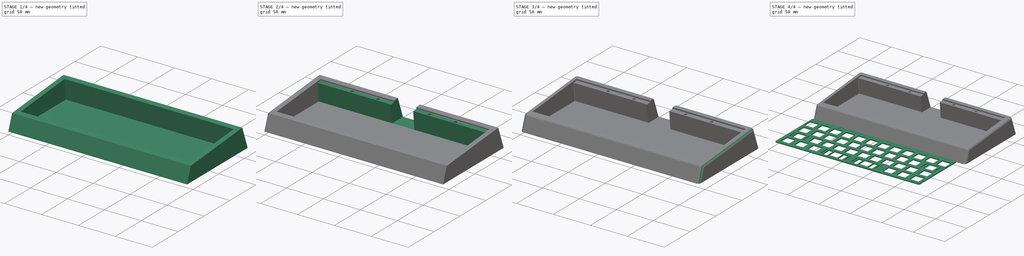
[diagram: build sequence overview — one tinted view per stage of 4, left to right]
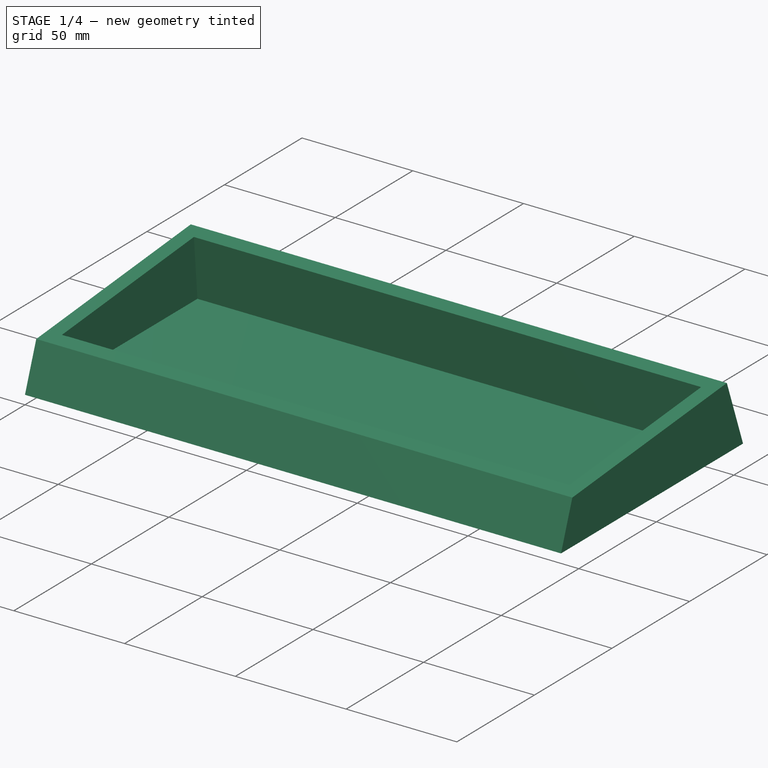
[diagram: stage 1 of 4 — iso view after this stage's code; geometry added in this stage tinted green]
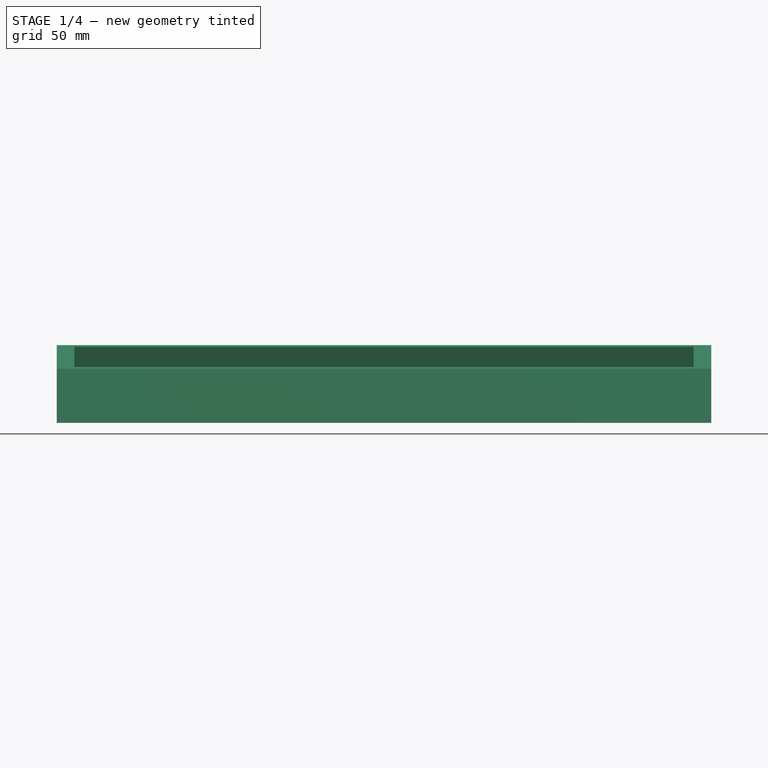
[diagram: stage 1 of 4 — front view after this stage's code; geometry added in this stage tinted green]
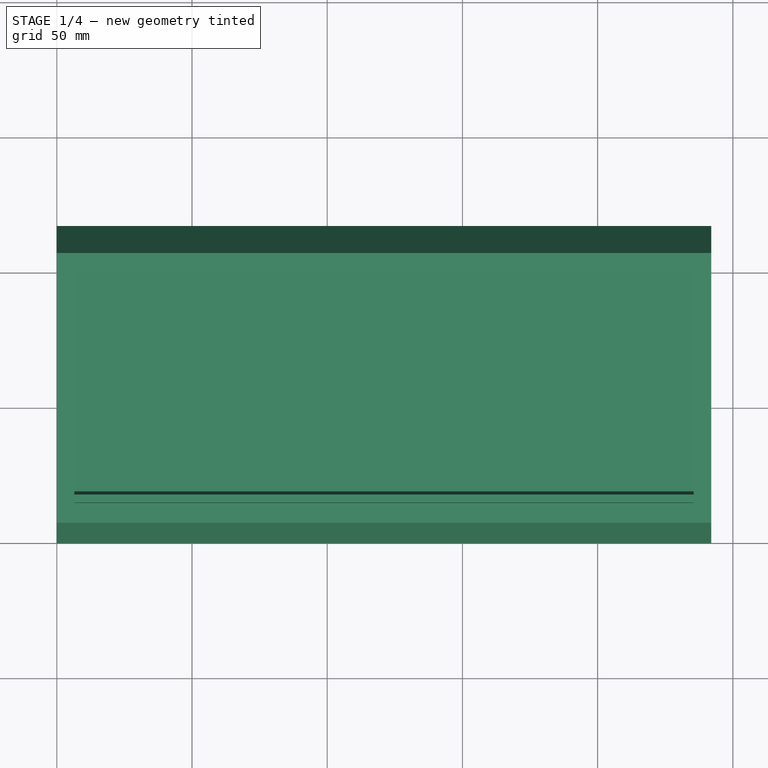
[diagram: stage 1 of 4 — top view after this stage's code; geometry added in this stage tinted green]
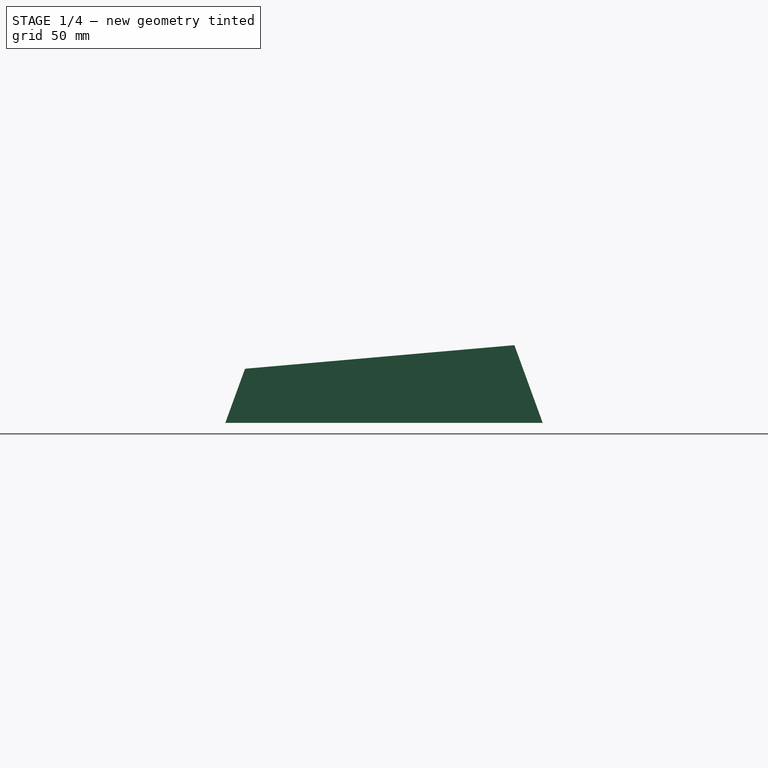
[diagram: stage 1 of 4 — right view after this stage's code; geometry added in this stage tinted green]
FCSTD DOCUMENT  (FreeCAD 0.20R)
Label: daisy
License: All rights reserved
LicenseURL: http://en.wikipedia.org/wiki/All_rights_reserved
objects: Sketcher::SketchObject×8, PartDesign::Pad×4, PartDesign::Fillet×4, PartDesign::Pocket×2, PartDesign::Hole×2, PartDesign::Body×2
note: 34 computed .brp shape members not serialized (recipe doc carries the construction recipe); baked Part::Feature solids carry a one-line shape summary decoded from their .brp

FEATURE [Sketcher::SketchObject] Sketch
  FullyConstrained = true
  MapMode = 5
  Placement = pos=(0,0,0) rot=(0.57735,0.57735,0.57735;2.0944rad)
  Support = -> [YZ_Plane]
  sketch-geometry (4):
    g0: LineSegment StartX=0 StartY=0 StartZ=0 EndX=7.2794 EndY=20 EndZ=0
    g1: LineSegment StartX=7.2794 StartY=20 StartZ=0 EndX=106.899 EndY=28.7156 EndZ=0
    g2: LineSegment StartX=106.899 StartY=28.7156 StartZ=0 EndX=117.35 EndY=0 EndZ=0
    g3: LineSegment StartX=117.35 StartY=0 StartZ=0 EndX=0 EndY=0 EndZ=0
  constraints (11):
    c: Coincident(g-1,g0)
    c: Coincident(g0,g1)
    c: Coincident(g1,g2)
    c: PointOnObject(g2,g-1)
    c: Coincident(g2,g3)
    c: Coincident(g3,g0)
    c: DistanceY(g0,g0) = 20
    c: Angle(g3,g1) = 0.0872665
    c: Distance(g1) = 100
    c: Angle(g3,g0) = 1.22173
    c: Angle(g2,g3) = 1.22173
FEATURE [PartDesign::Pad] Pad
  Direction = (1,-2e-16,3e-16)
  Length = 242
  Length2 = 10
  Placement = pos=(0,0,0) rot=(0.57735,0.57735,0.57735;2.0944rad)
  Profile = -> Sketch
  ReferenceAxis = -> Sketch [N_Axis]
  Type = 0
FEATURE [Sketcher::SketchObject] Sketch001
  ExternalGeometry = -> [Pad]
  FullyConstrained = true
  MapMode = 5
  Placement = pos=(-6.2e-15,-1.68119,19.216) rot=(0.043578,0.043578,-0.998099;1.5727rad)
  Support = -> [Pad]
  sketch-geometry (7):
    g0: LineSegment StartX=-101.695 StartY=6.5 StartZ=0 EndX=-16.2948 EndY=6.5 EndZ=0
    g1: LineSegment StartX=-16.2948 StartY=6.5 StartZ=0 EndX=-16.2948 EndY=235.5 EndZ=0
    g2: LineSegment StartX=-16.2948 StartY=235.5 StartZ=0 EndX=-101.695 EndY=235.5 EndZ=0
    g3: LineSegment StartX=-101.695 StartY=235.5 StartZ=0 EndX=-101.695 EndY=6.5 EndZ=0
    g4: LineSegment StartX=-8.99482 StartY=242 StartZ=0 EndX=-16.2948 EndY=235.5 EndZ=0
    g5: LineSegment StartX=-108.995 StartY=-1.02e-14 StartZ=0 EndX=-101.695 EndY=6.5 EndZ=0
    g6: LineSegment StartX=-8.99482 StartY=-3.4e-15 StartZ=0 EndX=-16.2948 EndY=6.5 EndZ=0
  constraints (18):
    c: Coincident(g0,g1)
    c: Coincident(g1,g2)
    c: Coincident(g2,g3)
    c: Coincident(g3,g0)
    c: Horizontal(g0)
    c: Horizontal(g2)
    c: Vertical(g1)
    c: Vertical(g3)
    c: Distance(g3) = 229
    c: Distance(g0) = 85.4
    c: Coincident(g4,g-3)
    c: Coincident(g4,g1)
    c: Coincident(g5,g-4)
    c: Coincident(g5,g0)
    c: Coincident(g6,g-3)
    c: Coincident(g6,g0)
    c: Equal(g6,g5)
    c: Equal(g6,g4)
FEATURE [PartDesign::Pocket] Pocket
  BaseFeature = -> Pad
  Direction = (4e-16,0.0871557,-0.996195)
  Length = 0
  Length2 = 5
  Offset = -2
  Placement = pos=(0,0,0) rot=(0.57735,0.57735,0.57735;2.0944rad)
  Profile = -> Sketch001
  ReferenceAxis = -> Sketch001 [N_Axis]
  Type = 3
  UpToFace = -> Pad [Face4]
FEATURE [Sketcher::SketchObject] Sketch002
  ExternalGeometry = -> [Pocket]
  FullyConstrained = true
  MapMode = 5
  Placement = pos=(7.2e-15,16.2328,1.42019) rot=(-0.559809,-0.559809,-0.610924;2.04477rad)
  Support = -> [Pocket]
  sketch-geometry (4):
    g0: LineSegment StartX=17.2895 StartY=6.5 StartZ=0 EndX=-0.425612 EndY=6.5 EndZ=0
    g1: LineSegment StartX=-0.425612 StartY=6.5 StartZ=0 EndX=-0.425612 EndY=235.5 EndZ=0
    g2: LineSegment StartX=-0.425612 StartY=235.5 StartZ=0 EndX=17.2895 EndY=235.5 EndZ=0
    g3: LineSegment StartX=17.2895 StartY=235.5 StartZ=0 EndX=17.2895 EndY=6.5 EndZ=0
  constraints (12):
    c: Coincident(g0,g1)
    c: Coincident(g1,g2)
    c: Coincident(g2,g3)
    c: Coincident(g3,g0)
    c: Horizontal(g0)
    c: Horizontal(g2)
    c: Vertical(g1)
    c: Vertical(g3)
    c: PointOnObject(g0,g-3)
    c: PointOnObject(g2,g-4)
    c: Distance(g2,g-4) = 2
    c: Distance(g1,g-4) = 1
FEATURE [PartDesign::Pad] Pad001
  BaseFeature = -> Pocket
  Direction = (4e-16,0.996195,0.0871557)
  Length = 3
  Length2 = 10
  Placement = pos=(0,0,0) rot=(0.57735,0.57735,0.57735;2.0944rad)
  Profile = -> Sketch002
  ReferenceAxis = -> Sketch002 [N_Axis]
  Type = 0
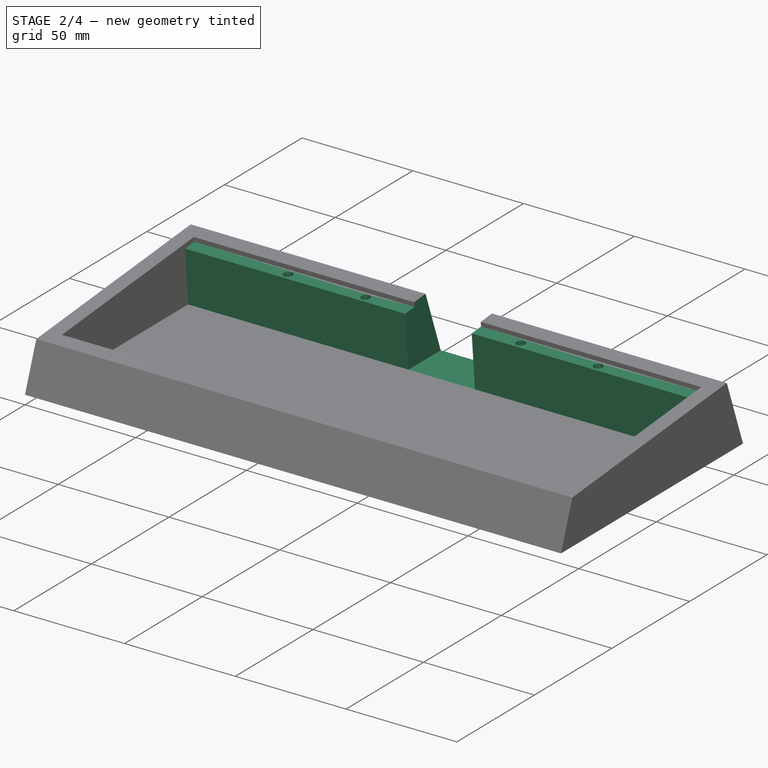
[diagram: stage 2 of 4 — iso view after this stage's code; geometry added in this stage tinted green]
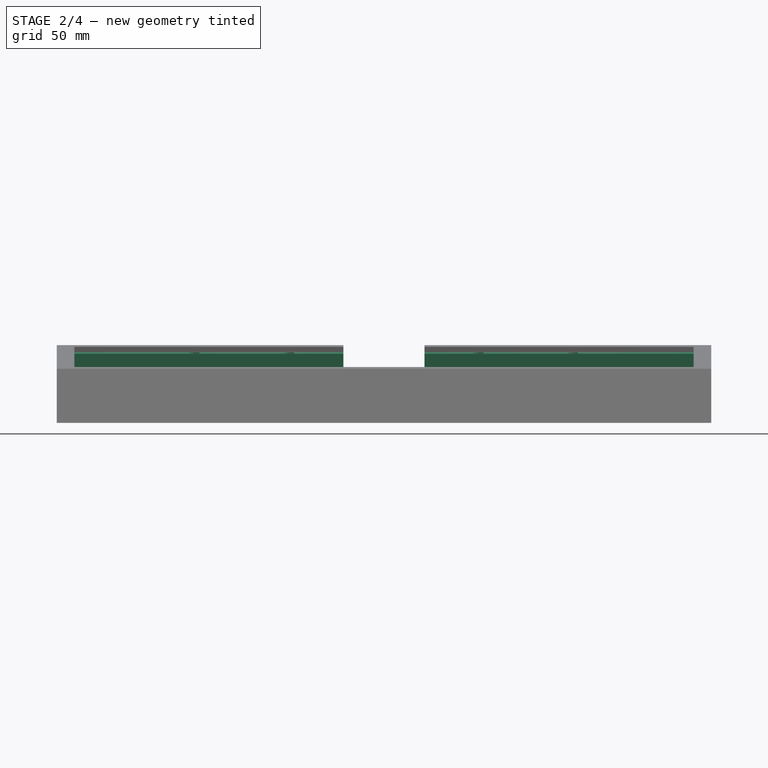
[diagram: stage 2 of 4 — front view after this stage's code; geometry added in this stage tinted green]
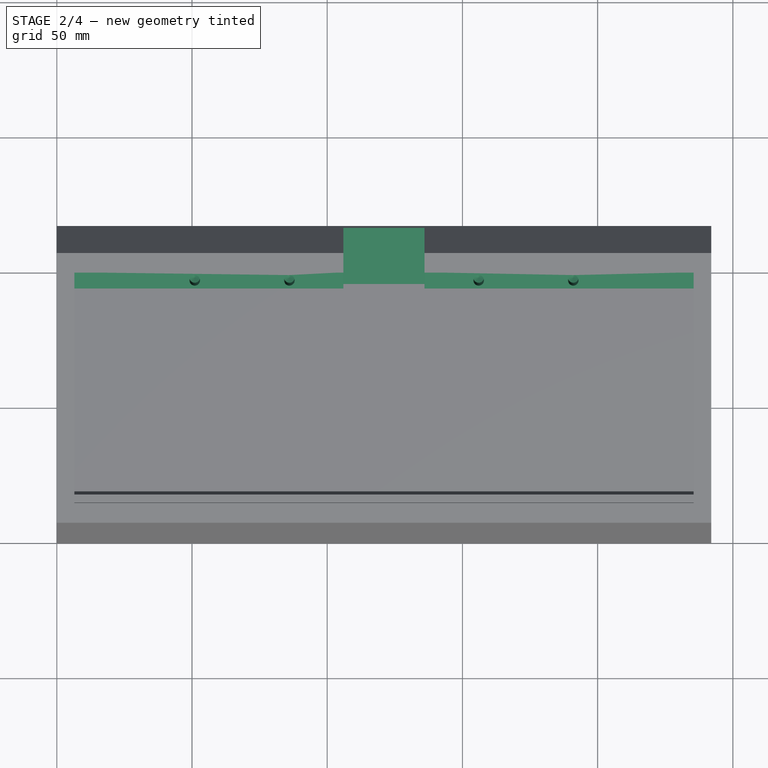
[diagram: stage 2 of 4 — top view after this stage's code; geometry added in this stage tinted green]
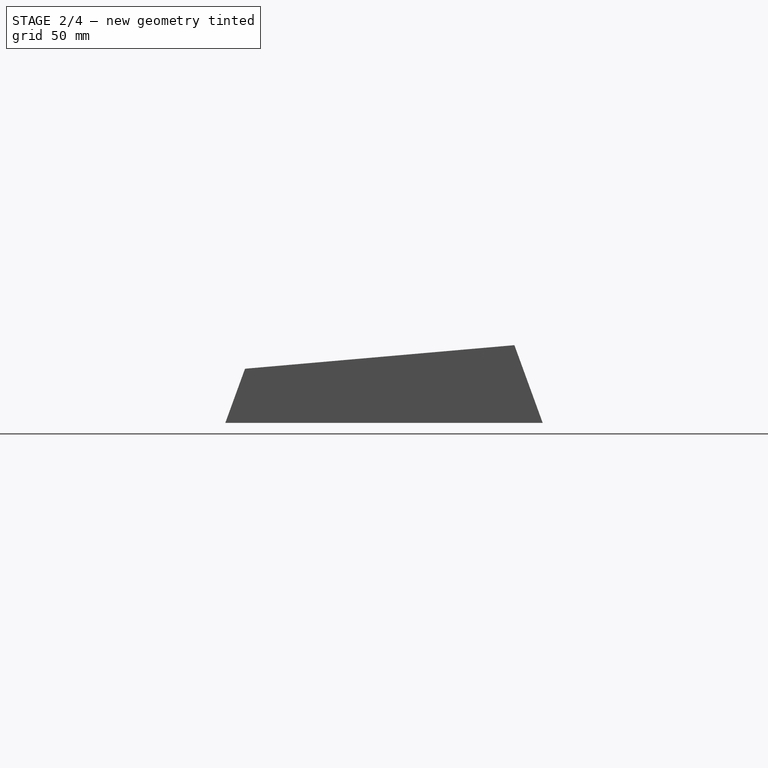
[diagram: stage 2 of 4 — right view after this stage's code; geometry added in this stage tinted green]
FEATURE [Sketcher::SketchObject] Sketch003
  ExternalGeometry = -> [Pad001]
  FullyConstrained = true
  MapMode = 5
  Placement = pos=(5.6e-14,101.308,8.86329) rot=(0.593426,0.593426,-0.543775;2.14549rad)
  Support = -> [Pad001]
  sketch-geometry (4):
    g0: LineSegment StartX=6.89714 StartY=6.5 StartZ=0 EndX=-17.2895 EndY=6.5 EndZ=0
    g1: LineSegment StartX=-17.2895 StartY=6.5 StartZ=0 EndX=-17.2895 EndY=235.5 EndZ=0
    g2: LineSegment StartX=-17.2895 StartY=235.5 StartZ=0 EndX=6.89714 EndY=235.5 EndZ=0
    g3: LineSegment StartX=6.89714 StartY=235.5 StartZ=0 EndX=6.89714 EndY=6.5 EndZ=0
  constraints (11):
    c: Coincident(g0,g1)
    c: Coincident(g1,g2)
    c: Coincident(g2,g3)
    c: Coincident(g3,g0)
    c: Horizontal(g0)
    c: Horizontal(g2)
    c: Vertical(g1)
    c: Vertical(g3)
    c: Coincident(g0,g-3)
    c: PointOnObject(g1,g-4)
    c: Distance(g1,g-4) = 2
FEATURE [PartDesign::Pad] Pad002
  BaseFeature = -> Pad001
  Direction = (-4e-16,-0.996195,-0.0871557)
  Length = 6
  Length2 = 10
  Placement = pos=(0,0,0) rot=(0.57735,0.57735,0.57735;2.0944rad)
  Profile = -> Sketch003
  ReferenceAxis = -> Sketch003 [N_Axis]
  Type = 0
FEATURE [Sketcher::SketchObject] Sketch004
  ExternalGeometry = -> [Pad002]
  FullyConstrained = true
  MapMode = 5
  Placement = pos=(-6.5e-15,-1.68119,19.216) rot=(0.043578,0.043578,-0.998099;1.5727rad)
  Support = -> [Pad002]
  sketch-geometry (5):
    g0: LineSegment StartX=-116.904 StartY=106 StartZ=0 EndX=-95.6948 EndY=106 EndZ=0
    g1: LineSegment StartX=-95.6948 StartY=106 StartZ=0 EndX=-95.6948 EndY=136 EndZ=0
    g2: LineSegment StartX=-95.6948 StartY=136 StartZ=0 EndX=-116.904 EndY=136 EndZ=0
    g3: LineSegment StartX=-116.904 StartY=136 StartZ=0 EndX=-116.904 EndY=106 EndZ=0
    g4: GeomPoint X=-116.904 Y=121 Z=0
  constraints (12):
    c: Coincident(g0,g1)
    c: Coincident(g1,g2)
    c: Coincident(g2,g3)
    c: Coincident(g3,g0)
    c: Horizontal(g0)
    c: Horizontal(g2)
    c: Vertical(g1)
    c: Vertical(g3)
    c: PointOnObject(g1,g-4)
    c: Symmetric(g-3,g-3,g4)
    c: Symmetric(g0,g2,g4)
    c: Distance(g3) = 30
FEATURE [PartDesign::Pocket] Pocket001
  BaseFeature = -> Pad002
  Direction = (3e-16,0.0871557,-0.996195)
  Length = 0
  Length2 = 5
  Placement = pos=(0,0,0) rot=(0.57735,0.57735,0.57735;2.0944rad)
  Profile = -> Sketch004
  ReferenceAxis = -> Sketch004 [N_Axis]
  Type = 3
  UpToFace = -> Pad002 [Face13]
FEATURE [Sketcher::SketchObject] Sketch007
  ExternalGeometry = -> [Pocket001]
  FullyConstrained = true
  MapMode = 5
  Placement = pos=(-2.1e-15,-1.50688,17.2237) rot=(0.043578,0.043578,-0.998099;1.5727rad)
  Support = -> [Pocket001]
  sketch-geometry (6):
    g0: GeomPoint X=-101.695 Y=121 Z=0
    g1: GeomPoint X=-98.6948 Y=121 Z=0
    g2: Circle CenterX=-98.6948 CenterY=156 CenterZ=0 NormalX=0 NormalY=0 NormalZ=1 AngleXU=0 Radius=1
    g3: Circle CenterX=-98.6948 CenterY=86 CenterZ=0 NormalX=0 NormalY=0 NormalZ=1 AngleXU=0 Radius=1
    g4: Circle CenterX=-98.6948 CenterY=191 CenterZ=0 NormalX=0 NormalY=0 NormalZ=1 AngleXU=0 Radius=1
    g5: Circle CenterX=-98.6948 CenterY=51 CenterZ=0 NormalX=0 NormalY=0 NormalZ=1 AngleXU=0 Radius=1
  constraints (13):
    c: Symmetric(g-3,g-4,g0)
    c: Horizontal(g1,g0)
    c: Distance(g1,g0) = 3
    c: Equal(g3,g2)
    c: Symmetric(g2,g3,g1)
    c: Vertical(g2,g3)
    c: Equal(g5,g4)
    c: Vertical(g4,g5)
    c: Symmetric(g4,g5,g1)
    c: Equal(g5,g3)
    c: DistanceY(g3,g1) = 35
    c: DistanceY(g5,g3) = 35
    c: Diameter(g5) = 2
FEATURE [PartDesign::Hole] Hole001
  BaseFeature = -> Pocket001
  CustomThreadClearance = 0
  Depth = 15
  DepthType = 0
  Diameter = 3.9
  DrillForDepth = false
  DrillPoint = 1
  DrillPointAngle = 118
  HoleCutCountersinkAngle = 90
  HoleCutCustomValues = false
  HoleCutDepth = 0
  HoleCutDiameter = 4
  HoleCutType = 0
  ModelThread = false
  Placement = pos=(0,0,0) rot=(0.57735,0.57735,0.57735;2.0944rad)
  Profile = -> Sketch007
  Tapered = false
  TaperedAngle = 90
  ThreadClass = 0
  ThreadDepth = 15
  ThreadDepthType = 0
  ThreadDirection = 0
  ThreadFit = 0
  ThreadSize = 10
  ThreadType = 1
  Threaded = false
  UseCustomThreadClearance = false
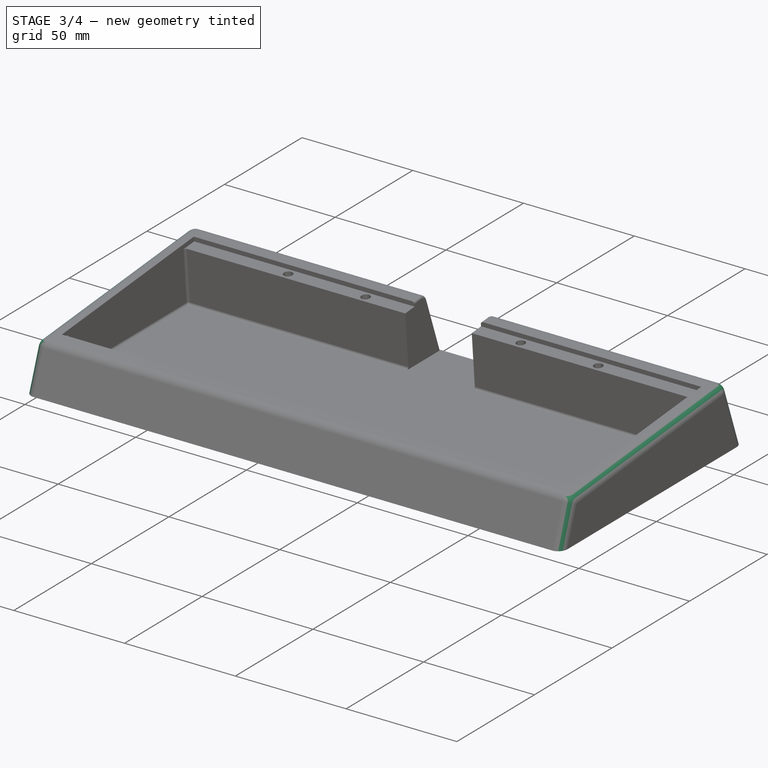
[diagram: stage 3 of 4 — iso view after this stage's code; geometry added in this stage tinted green]
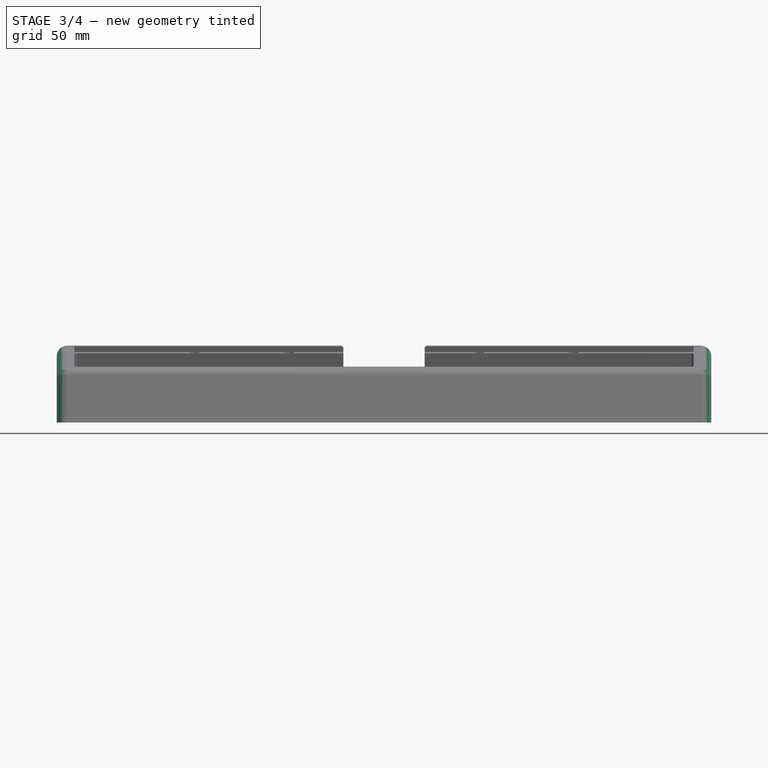
[diagram: stage 3 of 4 — front view after this stage's code; geometry added in this stage tinted green]
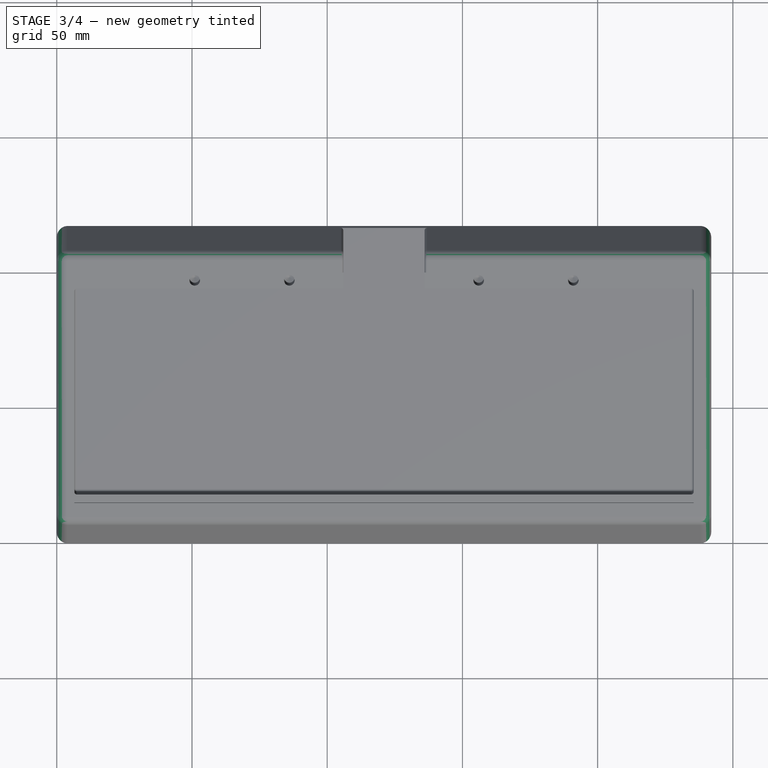
[diagram: stage 3 of 4 — top view after this stage's code; geometry added in this stage tinted green]
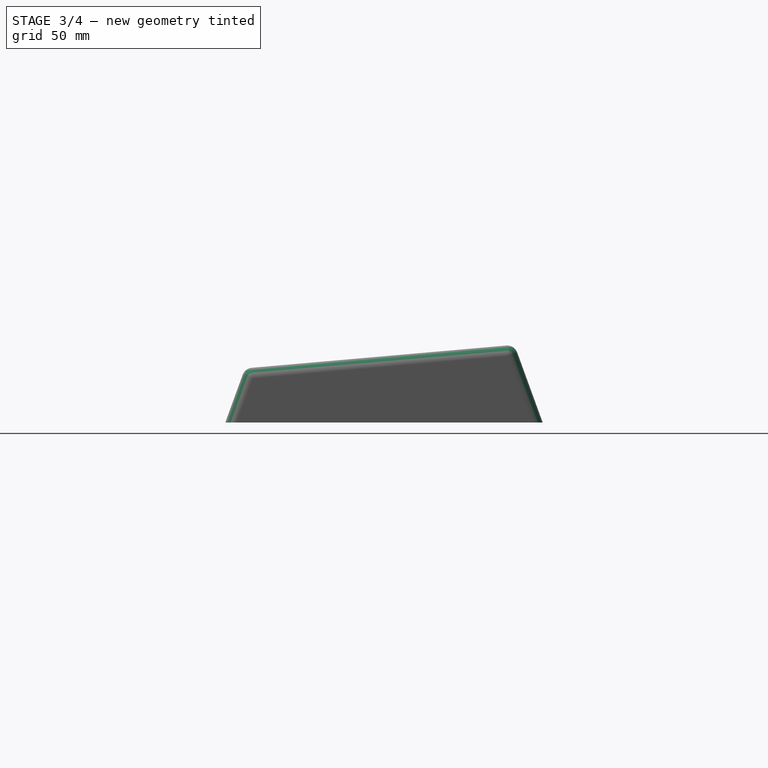
[diagram: stage 3 of 4 — right view after this stage's code; geometry added in this stage tinted green]
FEATURE [PartDesign::Body] Body001  label="plate"
  Group = -> [Sketch005,Pad003,Sketch006,Hole,Fillet004]
  Origin = -> Origin001
  Placement = pos=(6.7,99.804,26.0893) rot=(1,0,0;0.087266rad)
  Tip = -> Fillet004
FEATURE [PartDesign::Fillet] Fillet
  Base = -> Hole001 [Face19,Edge34,Edge32,Edge40,Edge42]
  BaseFeature = -> Hole001
  Placement = pos=(0,0,0) rot=(0.57735,0.57735,0.57735;2.0944rad)
  Radius = 1
  SupportTransform = false
  UseAllEdges = false
FEATURE [PartDesign::Fillet] Fillet005
  Base = -> Fillet [Edge82,Edge42,Edge40,Edge70,Edge30,Edge39,Edge31,Edge37,Edge38]
  BaseFeature = -> Fillet
  Placement = pos=(0,0,0) rot=(0.57735,0.57735,0.57735;2.0944rad)
  Radius = 4
  SupportTransform = false
  UseAllEdges = false
FEATURE [PartDesign::Fillet] Fillet006
  Base = -> Fillet005 [Edge1,Edge20]
  BaseFeature = -> Fillet005
  Placement = pos=(0,0,0) rot=(0.57735,0.57735,0.57735;2.0944rad)
  Radius = 1
  SupportTransform = false
  UseAllEdges = false
FEATURE [PartDesign::Body] Body
  Group = -> [Sketch,Pad,Sketch001,Pocket,Sketch002,Pad001,Sketch003,Pad002,Sketch004,Pocket001,Sketch007,Hole001,Fillet,Fillet005,Fillet006]
  Origin = -> Origin
  Tip = -> Fillet006
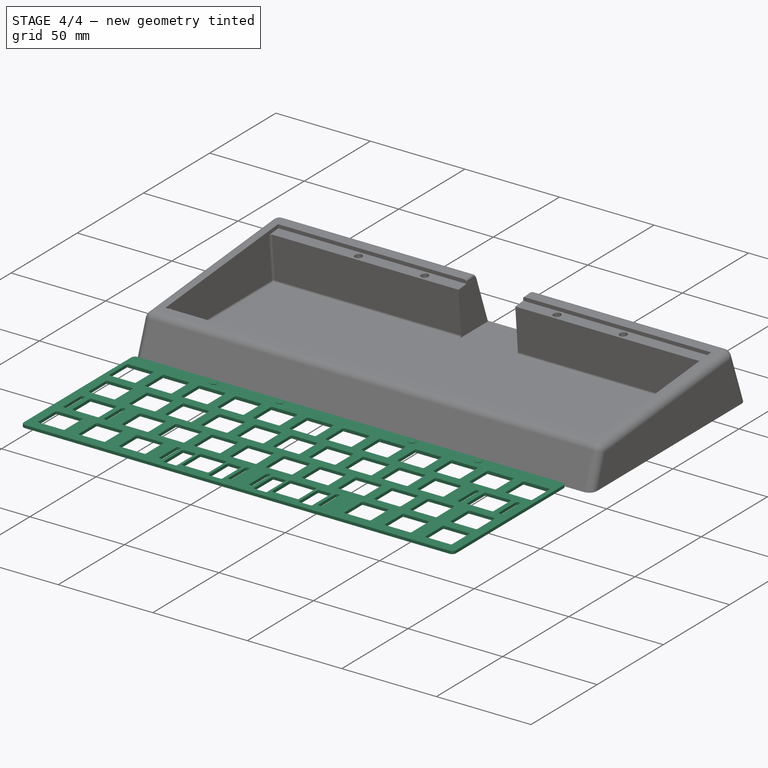
[diagram: stage 4 of 4 — iso view after this stage's code; geometry added in this stage tinted green]
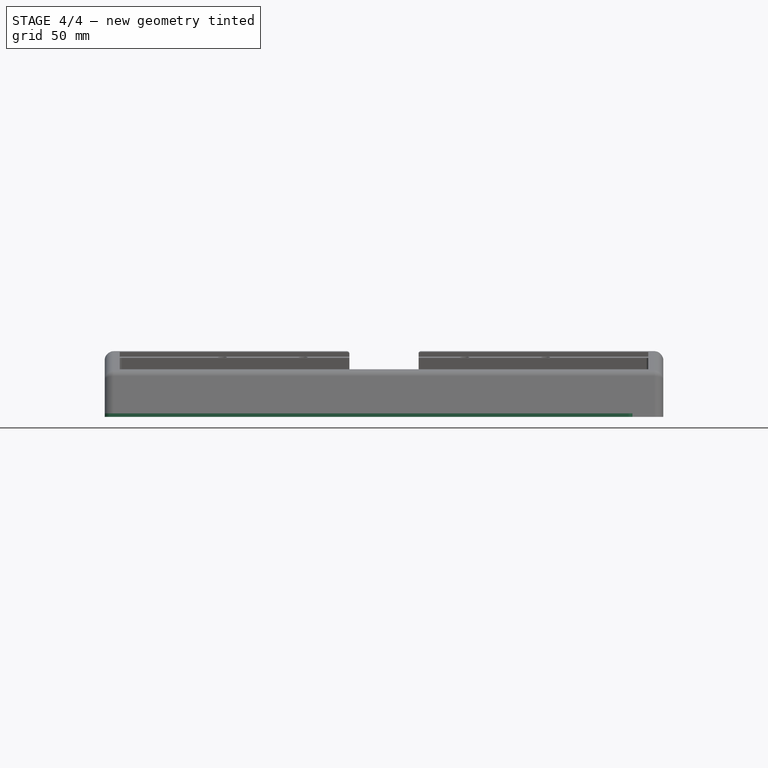
[diagram: stage 4 of 4 — front view after this stage's code; geometry added in this stage tinted green]
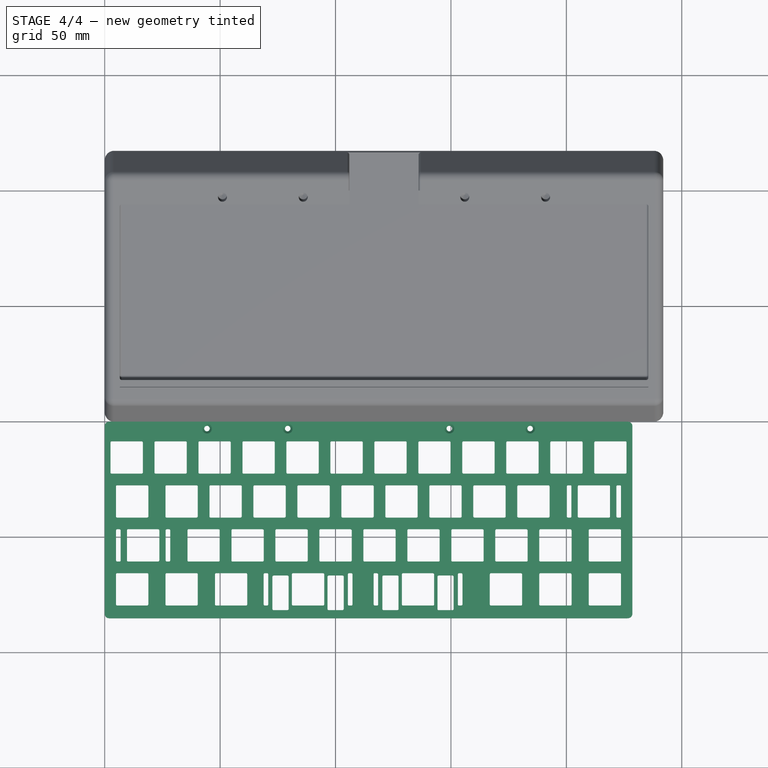
[diagram: stage 4 of 4 — top view after this stage's code; geometry added in this stage tinted green]
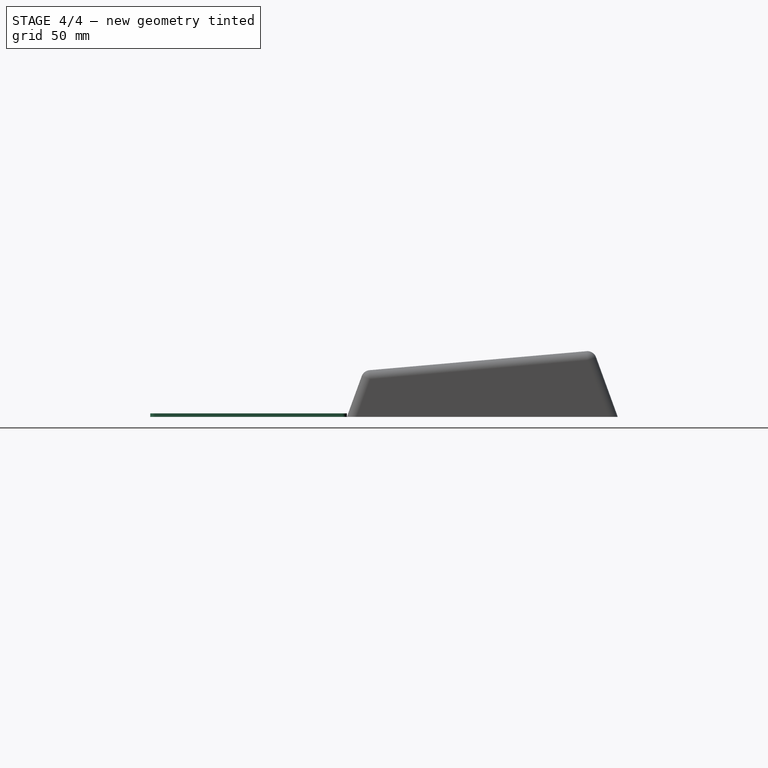
[diagram: stage 4 of 4 — right view after this stage's code; geometry added in this stage tinted green]
FEATURE [Sketcher::SketchObject] Sketch005
  FullyConstrained = false
  sketch-geometry (436):
    g0: LineSegment StartX=228.6 StartY=-85.2 StartZ=0 EndX=228.6 EndY=0 EndZ=0
    g1: LineSegment StartX=3.025 StartY=-8.525 StartZ=0 EndX=16.025 EndY=-8.525 EndZ=0
    g2: LineSegment StartX=3.025 StartY=-22.525 StartZ=0 EndX=16.025 EndY=-22.525 EndZ=0
    g3: LineSegment StartX=2.525 StartY=-9.025 StartZ=0 EndX=2.525 EndY=-22.025 EndZ=0
    g4: LineSegment StartX=16.525 StartY=-9.025 StartZ=0 EndX=16.525 EndY=-22.025 EndZ=0
    g5: ArcOfCircle CenterX=3.025 CenterY=-9.025 CenterZ=0 NormalX=0 NormalY=0 NormalZ=1 AngleXU=0 Radius=0.5 StartAngle=1.5708 EndAngle=3.14159
    g6: ArcOfCircle CenterX=16.025 CenterY=-9.025 CenterZ=0 NormalX=0 NormalY=0 NormalZ=1 AngleXU=0 Radius=0.5 StartAngle=0 EndAngle=1.5708
    g7: ArcOfCircle CenterX=3.025 CenterY=-22.025 CenterZ=0 NormalX=0 NormalY=0 NormalZ=1 AngleXU=0 Radius=0.5 StartAngle=3.14159 EndAngle=4.71239
    g8: ArcOfCircle CenterX=16.025 CenterY=-22.025 CenterZ=0 NormalX=0 NormalY=0 NormalZ=1 AngleXU=0 Radius=0.5 StartAngle=4.71239 EndAngle=6.28319
    g9: LineSegment StartX=22.075 StartY=-8.525 StartZ=0 EndX=35.075 EndY=-8.525 EndZ=0
    g10: LineSegment StartX=22.075 StartY=-22.525 StartZ=0 EndX=35.075 EndY=-22.525 EndZ=0
    g11: LineSegment StartX=21.575 StartY=-9.025 StartZ=0 EndX=21.575 EndY=-22.025 EndZ=0
    g12: LineSegment StartX=35.575 StartY=-9.025 StartZ=0 EndX=35.575 EndY=-22.025 EndZ=0
    g13: ArcOfCircle CenterX=22.075 CenterY=-9.025 CenterZ=0 NormalX=0 NormalY=0 NormalZ=1 AngleXU=0 Radius=0.5 StartAngle=1.5708 EndAngle=3.14159
    g14: ArcOfCircle CenterX=35.075 CenterY=-9.025 CenterZ=0 NormalX=0 NormalY=0 NormalZ=1 AngleXU=0 Radius=0.5 StartAngle=0 EndAngle=1.5708
    g15: ArcOfCircle CenterX=22.075 CenterY=-22.025 CenterZ=0 NormalX=0 NormalY=0 NormalZ=1 AngleXU=0 Radius=0.5 StartAngle=3.14159 EndAngle=4.71239
    g16: ArcOfCircle CenterX=35.075 CenterY=-22.025 CenterZ=0 NormalX=0 NormalY=0 NormalZ=1 AngleXU=0 Radius=0.5 StartAngle=4.71239 EndAngle=6.28319
    g17: LineSegment StartX=41.125 StartY=-8.525 StartZ=0 EndX=54.125 EndY=-8.525 EndZ=0
    g18: LineSegment StartX=41.125 StartY=-22.525 StartZ=0 EndX=54.125 EndY=-22.525 EndZ=0
    g19: LineSegment StartX=40.625 StartY=-9.025 StartZ=0 EndX=40.625 EndY=-22.025 EndZ=0
    g20: LineSegment StartX=54.625 StartY=-9.025 StartZ=0 EndX=54.625 EndY=-22.025 EndZ=0
    g21: ArcOfCircle CenterX=41.125 CenterY=-9.025 CenterZ=0 NormalX=0 NormalY=0 NormalZ=1 AngleXU=0 Radius=0.5 StartAngle=1.5708 EndAngle=3.14159
    g22: ArcOfCircle CenterX=54.125 CenterY=-9.025 CenterZ=0 NormalX=0 NormalY=0 NormalZ=1 AngleXU=0 Radius=0.5 StartAngle=0 EndAngle=1.5708
    g23: ArcOfCircle CenterX=41.125 CenterY=-22.025 CenterZ=0 NormalX=0 NormalY=0 NormalZ=1 AngleXU=0 Radius=0.5 StartAngle=3.14159 EndAngle=4.71239
    g24: ArcOfCircle CenterX=54.125 CenterY=-22.025 CenterZ=0 NormalX=0 NormalY=0 NormalZ=1 AngleXU=0 Radius=0.5 StartAngle=4.71239 EndAngle=6.28319
    g25: LineSegment StartX=60.175 StartY=-8.525 StartZ=0 EndX=73.175 EndY=-8.525 EndZ=0
    g26: LineSegment StartX=60.175 StartY=-22.525 StartZ=0 EndX=73.175 EndY=-22.525 EndZ=0
    g27: LineSegment StartX=59.675 StartY=-9.025 StartZ=0 EndX=59.675 EndY=-22.025 EndZ=0
    g28: LineSegment StartX=73.675 StartY=-9.025 StartZ=0 EndX=73.675 EndY=-22.025 EndZ=0
    g29: ArcOfCircle CenterX=60.175 CenterY=-9.025 CenterZ=0 NormalX=0 NormalY=0 NormalZ=1 AngleXU=0 Radius=0.5 StartAngle=1.5708 EndAngle=3.14159
    g30: ArcOfCircle CenterX=73.175 CenterY=-9.025 CenterZ=0 NormalX=0 NormalY=0 NormalZ=1 AngleXU=0 Radius=0.5 StartAngle=0 EndAngle=1.5708
    g31: ArcOfCircle CenterX=60.175 CenterY=-22.025 CenterZ=0 NormalX=0 NormalY=0 NormalZ=1 AngleXU=0 Radius=0.5 StartAngle=3.14159 EndAngle=4.71239
    g32: ArcOfCircle CenterX=73.175 CenterY=-22.025 CenterZ=0 NormalX=0 NormalY=0 NormalZ=1 AngleXU=0 Radius=0.5 StartAngle=4.71239 EndAngle=6.28319
    g33: LineSegment StartX=79.225 StartY=-8.525 StartZ=0 EndX=92.225 EndY=-8.525 EndZ=0
    g34: LineSegment StartX=79.225 StartY=-22.525 StartZ=0 EndX=92.225 EndY=-22.525 EndZ=0
    g35: LineSegment StartX=78.725 StartY=-9.025 StartZ=0 EndX=78.725 EndY=-22.025 EndZ=0
    g36: LineSegment StartX=92.725 StartY=-9.025 StartZ=0 EndX=92.725 EndY=-22.025 EndZ=0
    g37: ArcOfCircle CenterX=79.225 CenterY=-9.025 CenterZ=0 NormalX=0 NormalY=0 NormalZ=1 AngleXU=0 Radius=0.5 StartAngle=1.5708 EndAngle=3.14159
    g38: ArcOfCircle CenterX=92.225 CenterY=-9.025 CenterZ=0 NormalX=0 NormalY=0 NormalZ=1 AngleXU=0 Radius=0.5 StartAngle=0 EndAngle=1.5708
    g39: ArcOfCircle CenterX=79.225 CenterY=-22.025 CenterZ=0 NormalX=0 NormalY=0 NormalZ=1 AngleXU=0 Radius=0.5 StartAngle=3.14159 EndAngle=4.71239
    g40: ArcOfCircle CenterX=92.225 CenterY=-22.025 CenterZ=0 NormalX=0 NormalY=0 NormalZ=1 AngleXU=0 Radius=0.5 StartAngle=4.71239 EndAngle=6.28319
    g41: LineSegment StartX=98.275 StartY=-8.525 StartZ=0 EndX=111.275 EndY=-8.525 EndZ=0
    g42: LineSegment StartX=98.275 StartY=-22.525 StartZ=0 EndX=111.275 EndY=-22.525 EndZ=0
    g43: LineSegment StartX=97.775 StartY=-9.025 StartZ=0 EndX=97.775 EndY=-22.025 EndZ=0
    g44: LineSegment StartX=111.775 StartY=-9.025 StartZ=0 EndX=111.775 EndY=-22.025 EndZ=0
    g45: ArcOfCircle CenterX=98.275 CenterY=-9.025 CenterZ=0 NormalX=0 NormalY=0 NormalZ=1 AngleXU=0 Radius=0.5 StartAngle=1.5708 EndAngle=3.14159
    g46: ArcOfCircle CenterX=111.275 CenterY=-9.025 CenterZ=0 NormalX=0 NormalY=0 NormalZ=1 AngleXU=0 Radius=0.5 StartAngle=0 EndAngle=1.5708
    g47: ArcOfCircle CenterX=98.275 CenterY=-22.025 CenterZ=0 NormalX=0 NormalY=0 NormalZ=1 AngleXU=0 Radius=0.5 StartAngle=3.14159 EndAngle=4.71239
    g48: ArcOfCircle CenterX=111.275 CenterY=-22.025 CenterZ=0 NormalX=0 NormalY=0 NormalZ=1 AngleXU=0 Radius=0.5 StartAngle=4.71239 EndAngle=6.28319
    g49: LineSegment StartX=117.325 StartY=-8.525 StartZ=0 EndX=130.325 EndY=-8.525 EndZ=0
    g50: LineSegment StartX=117.325 StartY=-22.525 StartZ=0 EndX=130.325 EndY=-22.525 EndZ=0
    g51: LineSegment StartX=116.825 StartY=-9.025 StartZ=0 EndX=116.825 EndY=-22.025 EndZ=0
    g52: LineSegment StartX=130.825 StartY=-9.025 StartZ=0 EndX=130.825 EndY=-22.025 EndZ=0
    g53: ArcOfCircle CenterX=117.325 CenterY=-9.025 CenterZ=0 NormalX=0 NormalY=0 NormalZ=1 AngleXU=0 Radius=0.5 StartAngle=1.5708 EndAngle=3.14159
    g54: ArcOfCircle CenterX=130.325 CenterY=-9.025 CenterZ=0 NormalX=0 NormalY=0 NormalZ=1 AngleXU=0 Radius=0.5 StartAngle=0 EndAngle=1.5708
    g55: ArcOfCircle CenterX=117.325 CenterY=-22.025 CenterZ=0 NormalX=0 NormalY=0 NormalZ=1 AngleXU=0 Radius=0.5 StartAngle=3.14159 EndAngle=4.71239
    g56: ArcOfCircle CenterX=130.325 CenterY=-22.025 CenterZ=0 NormalX=0 NormalY=0 NormalZ=1 AngleXU=0 Radius=0.5 StartAngle=4.71239 EndAngle=6.28319
    g57: LineSegment StartX=136.375 StartY=-8.525 StartZ=0 EndX=149.375 EndY=-8.525 EndZ=0
    g58: LineSegment StartX=136.375 StartY=-22.525 StartZ=0 EndX=149.375 EndY=-22.525 EndZ=0
    g59: LineSegment StartX=135.875 StartY=-9.025 StartZ=0 EndX=135.875 EndY=-22.025 EndZ=0
    g60: LineSegment StartX=149.875 StartY=-9.025 StartZ=0 EndX=149.875 EndY=-22.025 EndZ=0
    g61: ArcOfCircle CenterX=136.375 CenterY=-9.025 CenterZ=0 NormalX=0 NormalY=0 NormalZ=1 AngleXU=0 Radius=0.5 StartAngle=1.5708 EndAngle=3.14159
    g62: ArcOfCircle CenterX=149.375 CenterY=-9.025 CenterZ=0 NormalX=0 NormalY=0 NormalZ=1 AngleXU=0 Radius=0.5 StartAngle=0 EndAngle=1.5708
    g63: ArcOfCircle CenterX=136.375 CenterY=-22.025 CenterZ=0 NormalX=0 NormalY=0 NormalZ=1 AngleXU=0 Radius=0.5 StartAngle=3.14159 EndAngle=4.71239
    g64: ArcOfCircle CenterX=149.375 CenterY=-22.025 CenterZ=0 NormalX=0 NormalY=0 NormalZ=1 AngleXU=0 Radius=0.5 StartAngle=4.71239 EndAngle=6.28319
    g65: LineSegment StartX=155.425 StartY=-8.525 StartZ=0 EndX=168.425 EndY=-8.525 EndZ=0
    g66: LineSegment StartX=155.425 StartY=-22.525 StartZ=0 EndX=168.425 EndY=-22.525 EndZ=0
    g67: LineSegment StartX=154.925 StartY=-9.025 StartZ=0 EndX=154.925 EndY=-22.025 EndZ=0
    g68: LineSegment StartX=168.925 StartY=-9.025 StartZ=0 EndX=168.925 EndY=-22.025 EndZ=0
    g69: ArcOfCircle CenterX=155.425 CenterY=-9.025 CenterZ=0 NormalX=0 NormalY=0 NormalZ=1 AngleXU=0 Radius=0.5 StartAngle=1.5708 EndAngle=3.14159
    g70: ArcOfCircle CenterX=168.425 CenterY=-9.025 CenterZ=0 NormalX=0 NormalY=0 NormalZ=1 AngleXU=0 Radius=0.5 StartAngle=0 EndAngle=1.5708
    g71: ArcOfCircle CenterX=155.425 CenterY=-22.025 CenterZ=0 NormalX=0 NormalY=0 NormalZ=1 AngleXU=0 Radius=0.5 StartAngle=3.14159 EndAngle=4.71239
    g72: ArcOfCircle CenterX=168.425 CenterY=-22.025 CenterZ=0 NormalX=0 NormalY=0 NormalZ=1 AngleXU=0 Radius=0.5 StartAngle=4.71239 EndAngle=6.28319
    g73: LineSegment StartX=174.475 StartY=-8.525 StartZ=0 EndX=187.475 EndY=-8.525 EndZ=0
    g74: LineSegment StartX=174.475 StartY=-22.525 StartZ=0 EndX=187.475 EndY=-22.525 EndZ=0
    g75: LineSegment StartX=173.975 StartY=-9.025 StartZ=0 EndX=173.975 EndY=-22.025 EndZ=0
    g76: LineSegment StartX=187.975 StartY=-9.025 StartZ=0 EndX=187.975 EndY=-22.025 EndZ=0
    g77: ArcOfCircle CenterX=174.475 CenterY=-9.025 CenterZ=0 NormalX=0 NormalY=0 NormalZ=1 AngleXU=0 Radius=0.5 StartAngle=1.5708 EndAngle=3.14159
    g78: ArcOfCircle CenterX=187.475 CenterY=-9.025 CenterZ=0 NormalX=0 NormalY=0 NormalZ=1 AngleXU=0 Radius=0.5 StartAngle=0 EndAngle=1.5708
    g79: ArcOfCircle CenterX=174.475 CenterY=-22.025 CenterZ=0 NormalX=0 NormalY=0 NormalZ=1 AngleXU=0 Radius=0.5 StartAngle=3.14159 EndAngle=4.71239
    g80: ArcOfCircle CenterX=187.475 CenterY=-22.025 CenterZ=0 NormalX=0 NormalY=0 NormalZ=1 AngleXU=0 Radius=0.5 StartAngle=4.71239 EndAngle=6.28319
    g81: LineSegment StartX=193.525 StartY=-8.525 StartZ=0 EndX=206.525 EndY=-8.525 EndZ=0
    g82: LineSegment StartX=193.525 StartY=-22.525 StartZ=0 EndX=206.525 EndY=-22.525 EndZ=0
    g83: LineSegment StartX=193.025 StartY=-9.025 StartZ=0 EndX=193.025 EndY=-22.025 EndZ=0
    g84: LineSegment StartX=207.025 StartY=-9.025 StartZ=0 EndX=207.025 EndY=-22.025 EndZ=0
    g85: ArcOfCircle CenterX=193.525 CenterY=-9.025 CenterZ=0 NormalX=0 NormalY=0 NormalZ=1 AngleXU=0 Radius=0.5 StartAngle=1.5708 EndAngle=3.14159
    g86: ArcOfCircle CenterX=206.525 CenterY=-9.025 CenterZ=0 NormalX=0 NormalY=0 NormalZ=1 AngleXU=0 Radius=0.5 StartAngle=0 EndAngle=1.5708
    g87: ArcOfCircle CenterX=193.525 CenterY=-22.025 CenterZ=0 NormalX=0 NormalY=0 NormalZ=1 AngleXU=0 Radius=0.5 StartAngle=3.14159 EndAngle=4.71239
    g88: ArcOfCircle CenterX=206.525 CenterY=-22.025 CenterZ=0 NormalX=0 NormalY=0 NormalZ=1 AngleXU=0 Radius=0.5 StartAngle=4.71239 EndAngle=6.28319
    g89: LineSegment StartX=212.575 StartY=-8.525 StartZ=0 EndX=225.575 EndY=-8.525 EndZ=0
    g90: LineSegment StartX=212.575 StartY=-22.525 StartZ=0 EndX=225.575 EndY=-22.525 EndZ=0
    g91: LineSegment StartX=212.075 StartY=-9.025 StartZ=0 EndX=212.075 EndY=-22.025 EndZ=0
    g92: LineSegment StartX=226.075 StartY=-9.025 StartZ=0 EndX=226.075 EndY=-22.025 EndZ=0
    g93: ArcOfCircle CenterX=212.575 CenterY=-9.025 CenterZ=0 NormalX=0 NormalY=0 NormalZ=1 AngleXU=0 Radius=0.5 StartAngle=1.5708 EndAngle=3.14159
    g94: ArcOfCircle CenterX=225.575 CenterY=-9.025 CenterZ=0 NormalX=0 NormalY=0 NormalZ=1 AngleXU=0 Radius=0.5 StartAngle=0 EndAngle=1.5708
    g95: ArcOfCircle CenterX=212.575 CenterY=-22.025 CenterZ=0 NormalX=0 NormalY=0 NormalZ=1 AngleXU=0 Radius=0.5 StartAngle=3.14159 EndAngle=4.71239
    g96: ArcOfCircle CenterX=225.575 CenterY=-22.025 CenterZ=0 NormalX=0 NormalY=0 NormalZ=1 AngleXU=0 Radius=0.5 StartAngle=4.71239 EndAngle=6.28319
    g97: LineSegment StartX=5.40625 StartY=-27.575 StartZ=0 EndX=18.4062 EndY=-27.575 EndZ=0
    g98: LineSegment StartX=5.40625 StartY=-41.575 StartZ=0 EndX=18.4062 EndY=-41.575 EndZ=0
    g99: LineSegment StartX=4.90625 StartY=-28.075 StartZ=0 EndX=4.90625 EndY=-41.075 EndZ=0
    g100: LineSegment StartX=18.9062 StartY=-28.075 StartZ=0 EndX=18.9062 EndY=-41.075 EndZ=0
    g101: ArcOfCircle CenterX=5.40625 CenterY=-28.075 CenterZ=0 NormalX=0 NormalY=0 NormalZ=1 AngleXU=0 Radius=0.5 StartAngle=1.5708 EndAngle=3.14159
    g102: ArcOfCircle CenterX=18.4062 CenterY=-28.075 CenterZ=0 NormalX=0 NormalY=0 NormalZ=1 AngleXU=0 Radius=0.5 StartAngle=0 EndAngle=1.5708
    g103: ArcOfCircle CenterX=5.40625 CenterY=-41.075 CenterZ=0 NormalX=0 NormalY=0 NormalZ=1 AngleXU=0 Radius=0.5 StartAngle=3.14159 EndAngle=4.71239
    g104: ArcOfCircle CenterX=18.4062 CenterY=-41.075 CenterZ=0 NormalX=0 NormalY=0 NormalZ=1 AngleXU=0 Radius=0.5 StartAngle=4.71239 EndAngle=6.28319
    g105: LineSegment StartX=26.8375 StartY=-27.575 StartZ=0 EndX=39.8375 EndY=-27.575 EndZ=0
    g106: LineSegment StartX=26.8375 StartY=-41.575 StartZ=0 EndX=39.8375 EndY=-41.575 EndZ=0
    g107: LineSegment StartX=26.3375 StartY=-28.075 StartZ=0 EndX=26.3375 EndY=-41.075 EndZ=0
    g108: LineSegment StartX=40.3375 StartY=-28.075 StartZ=0 EndX=40.3375 EndY=-41.075 EndZ=0
    g109: ArcOfCircle CenterX=26.8375 CenterY=-28.075 CenterZ=0 NormalX=0 NormalY=0 NormalZ=1 AngleXU=0 Radius=0.5 StartAngle=1.5708 EndAngle=3.14159
    g110: ArcOfCircle CenterX=39.8375 CenterY=-28.075 CenterZ=0 NormalX=0 NormalY=0 NormalZ=1 AngleXU=0 Radius=0.5 StartAngle=0 EndAngle=1.5708
    g111: ArcOfCircle CenterX=26.8375 CenterY=-41.075 CenterZ=0 NormalX=0 NormalY=0 NormalZ=1 AngleXU=0 Radius=0.5 StartAngle=3.14159 EndAngle=4.71239
    g112: ArcOfCircle CenterX=39.8375 CenterY=-41.075 CenterZ=0 NormalX=0 NormalY=0 NormalZ=1 AngleXU=0 Radius=0.5 StartAngle=4.71239 EndAngle=6.28319
    g113: LineSegment StartX=45.8875 StartY=-27.575 StartZ=0 EndX=58.8875 EndY=-27.575 EndZ=0
    g114: LineSegment StartX=45.8875 StartY=-41.575 StartZ=0 EndX=58.8875 EndY=-41.575 EndZ=0
    g115: LineSegment StartX=45.3875 StartY=-28.075 StartZ=0 EndX=45.3875 EndY=-41.075 EndZ=0
    g116: LineSegment StartX=59.3875 StartY=-28.075 StartZ=0 EndX=59.3875 EndY=-41.075 EndZ=0
    g117: ArcOfCircle CenterX=45.8875 CenterY=-28.075 CenterZ=0 NormalX=0 NormalY=0 NormalZ=1 AngleXU=0 Radius=0.5 StartAngle=1.5708 EndAngle=3.14159
    g118: ArcOfCircle CenterX=58.8875 CenterY=-28.075 CenterZ=0 NormalX=0 NormalY=0 NormalZ=1 AngleXU=0 Radius=0.5 StartAngle=0 EndAngle=1.5708
    g119: ArcOfCircle CenterX=45.8875 CenterY=-41.075 CenterZ=0 NormalX=0 NormalY=0 NormalZ=1 AngleXU=0 Radius=0.5 StartAngle=3.14159 EndAngle=4.71239
    g120: ArcOfCircle CenterX=58.8875 CenterY=-41.075 CenterZ=0 NormalX=0 NormalY=0 NormalZ=1 AngleXU=0 Radius=0.5 StartAngle=4.71239 EndAngle=6.28319
    g121: LineSegment StartX=64.9375 StartY=-27.575 StartZ=0 EndX=77.9375 EndY=-27.575 EndZ=0
    g122: LineSegment StartX=64.9375 StartY=-41.575 StartZ=0 EndX=77.9375 EndY=-41.575 EndZ=0
    g123: LineSegment StartX=64.4375 StartY=-28.075 StartZ=0 EndX=64.4375 EndY=-41.075 EndZ=0
    g124: LineSegment StartX=78.4375 StartY=-28.075 StartZ=0 EndX=78.4375 EndY=-41.075 EndZ=0
    g125: ArcOfCircle CenterX=64.9375 CenterY=-28.075 CenterZ=0 NormalX=0 NormalY=0 NormalZ=1 AngleXU=0 Radius=0.5 StartAngle=1.5708 EndAngle=3.14159
    g126: ArcOfCircle CenterX=77.9375 CenterY=-28.075 CenterZ=0 NormalX=0 NormalY=0 NormalZ=1 AngleXU=0 Radius=0.5 StartAngle=0 EndAngle=1.5708
    g127: ArcOfCircle CenterX=64.9375 CenterY=-41.075 CenterZ=0 NormalX=0 NormalY=0 NormalZ=1 AngleXU=0 Radius=0.5 StartAngle=3.14159 EndAngle=4.71239
    g128: ArcOfCircle CenterX=77.9375 CenterY=-41.075 CenterZ=0 NormalX=0 NormalY=0 NormalZ=1 AngleXU=0 Radius=0.5 StartAngle=4.71239 EndAngle=6.28319
    g129: LineSegment StartX=83.9875 StartY=-27.575 StartZ=0 EndX=96.9875 EndY=-27.575 EndZ=0
    g130: LineSegment StartX=83.9875 StartY=-41.575 StartZ=0 EndX=96.9875 EndY=-41.575 EndZ=0
    g131: LineSegment StartX=83.4875 StartY=-28.075 StartZ=0 EndX=83.4875 EndY=-41.075 EndZ=0
    g132: LineSegment StartX=97.4875 StartY=-28.075 StartZ=0 EndX=97.4875 EndY=-41.075 EndZ=0
    g133: ArcOfCircle CenterX=83.9875 CenterY=-28.075 CenterZ=0 NormalX=0 NormalY=0 NormalZ=1 AngleXU=0 Radius=0.5 StartAngle=1.5708 EndAngle=3.14159
    g134: ArcOfCircle CenterX=96.9875 CenterY=-28.075 CenterZ=0 NormalX=0 NormalY=0 NormalZ=1 AngleXU=0 Radius=0.5 StartAngle=0 EndAngle=1.5708
    g135: ArcOfCircle CenterX=83.9875 CenterY=-41.075 CenterZ=0 NormalX=0 NormalY=0 NormalZ=1 AngleXU=0 Radius=0.5 StartAngle=3.14159 EndAngle=4.71239
    g136: ArcOfCircle CenterX=96.9875 CenterY=-41.075 CenterZ=0 NormalX=0 NormalY=0 NormalZ=1 AngleXU=0 Radius=0.5 StartAngle=4.71239 EndAngle=6.28319
    g137: LineSegment StartX=103.037 StartY=-27.575 StartZ=0 EndX=116.037 EndY=-27.575 EndZ=0
    g138: LineSegment StartX=103.037 StartY=-41.575 StartZ=0 EndX=116.037 EndY=-41.575 EndZ=0
    g139: LineSegment StartX=102.537 StartY=-28.075 StartZ=0 EndX=102.537 EndY=-41.075 EndZ=0
    g140: LineSegment StartX=116.537 StartY=-28.075 StartZ=0 EndX=116.537 EndY=-41.075 EndZ=0
    g141: ArcOfCircle CenterX=103.037 CenterY=-28.075 CenterZ=0 NormalX=0 NormalY=0 NormalZ=1 AngleXU=0 Radius=0.5 StartAngle=1.5708 EndAngle=3.14159
    g142: ArcOfCircle CenterX=116.037 CenterY=-28.075 CenterZ=0 NormalX=0 NormalY=0 NormalZ=1 AngleXU=0 Radius=0.5 StartAngle=0 EndAngle=1.5708
    g143: ArcOfCircle CenterX=103.037 CenterY=-41.075 CenterZ=0 NormalX=0 NormalY=0 NormalZ=1 AngleXU=0 Radius=0.5 StartAngle=3.14159 EndAngle=4.71239
    g144: ArcOfCircle CenterX=116.037 CenterY=-41.075 CenterZ=0 NormalX=0 NormalY=0 NormalZ=1 AngleXU=0 Radius=0.5 StartAngle=4.71239 EndAngle=6.28319
    g145: LineSegment StartX=122.088 StartY=-27.575 StartZ=0 EndX=135.088 EndY=-27.575 EndZ=0
    g146: LineSegment StartX=122.088 StartY=-41.575 StartZ=0 EndX=135.088 EndY=-41.575 EndZ=0
    g147: LineSegment StartX=121.588 StartY=-28.075 StartZ=0 EndX=121.588 EndY=-41.075 EndZ=0
    g148: LineSegment StartX=135.588 StartY=-28.075 StartZ=0 EndX=135.588 EndY=-41.075 EndZ=0
    g149: ArcOfCircle CenterX=122.088 CenterY=-28.075 CenterZ=0 NormalX=0 NormalY=0 NormalZ=1 AngleXU=0 Radius=0.5 StartAngle=1.5708 EndAngle=3.14159
    g150: ArcOfCircle CenterX=135.088 CenterY=-28.075 CenterZ=0 NormalX=0 NormalY=0 NormalZ=1 AngleXU=0 Radius=0.5 StartAngle=0 EndAngle=1.5708
    g151: ArcOfCircle CenterX=122.088 CenterY=-41.075 CenterZ=0 NormalX=0 NormalY=0 NormalZ=1 AngleXU=0 Radius=0.5 StartAngle=3.14159 EndAngle=4.71239
    g152: ArcOfCircle CenterX=135.088 CenterY=-41.075 CenterZ=0 NormalX=0 NormalY=0 NormalZ=1 AngleXU=0 Radius=0.5 StartAngle=4.71239 EndAngle=6.28319
    g153: LineSegment StartX=141.137 StartY=-27.575 StartZ=0 EndX=154.137 EndY=-27.575 EndZ=0
    g154: LineSegment StartX=141.137 StartY=-41.575 StartZ=0 EndX=154.137 EndY=-41.575 EndZ=0
    g155: LineSegment StartX=140.637 StartY=-28.075 StartZ=0 EndX=140.637 EndY=-41.075 EndZ=0
    g156: LineSegment StartX=154.637 StartY=-28.075 StartZ=0 EndX=154.637 EndY=-41.075 EndZ=0
    g157: ArcOfCircle CenterX=141.137 CenterY=-28.075 CenterZ=0 NormalX=0 NormalY=0 NormalZ=1 AngleXU=0 Radius=0.5 StartAngle=1.5708 EndAngle=3.14159
    g158: ArcOfCircle CenterX=154.137 CenterY=-28.075 CenterZ=0 NormalX=0 NormalY=0 NormalZ=1 AngleXU=0 Radius=0.5 StartAngle=0 EndAngle=1.5708
    g159: ArcOfCircle CenterX=141.137 CenterY=-41.075 CenterZ=0 NormalX=0 NormalY=0 NormalZ=1 AngleXU=0 Radius=0.5 StartAngle=3.14159 EndAngle=4.71239
    g160: ArcOfCircle CenterX=154.137 CenterY=-41.075 CenterZ=0 NormalX=0 NormalY=0 NormalZ=1 AngleXU=0 Radius=0.5 StartAngle=4.71239 EndAngle=6.28319
    g161: LineSegment StartX=160.188 StartY=-27.575 StartZ=0 EndX=173.188 EndY=-27.575 EndZ=0
    g162: LineSegment StartX=160.188 StartY=-41.575 StartZ=0 EndX=173.188 EndY=-41.575 EndZ=0
    g163: LineSegment StartX=159.688 StartY=-28.075 StartZ=0 EndX=159.688 EndY=-41.075 EndZ=0
    g164: LineSegment StartX=173.688 StartY=-28.075 StartZ=0 EndX=173.688 EndY=-41.075 EndZ=0
    g165: ArcOfCircle CenterX=160.188 CenterY=-28.075 CenterZ=0 NormalX=0 NormalY=0 NormalZ=1 AngleXU=0 Radius=0.5 StartAngle=1.5708 EndAngle=3.14159
    g166: ArcOfCircle CenterX=173.188 CenterY=-28.075 CenterZ=0 NormalX=0 NormalY=0 NormalZ=1 AngleXU=0 Radius=0.5 StartAngle=0 EndAngle=1.5708
    g167: ArcOfCircle CenterX=160.188 CenterY=-41.075 CenterZ=0 NormalX=0 NormalY=0 NormalZ=1 AngleXU=0 Radius=0.5 StartAngle=3.14159 EndAngle=4.71239
    g168: ArcOfCircle CenterX=173.188 CenterY=-41.075 CenterZ=0 NormalX=0 NormalY=0 NormalZ=1 AngleXU=0 Radius=0.5 StartAngle=4.71239 EndAngle=6.28319
    g169: LineSegment StartX=179.238 StartY=-27.575 StartZ=0 EndX=192.238 EndY=-27.575 EndZ=0
    g170: LineSegment StartX=179.238 StartY=-41.575 StartZ=0 EndX=192.238 EndY=-41.575 EndZ=0
    g171: LineSegment StartX=178.738 StartY=-28.075 StartZ=0 EndX=178.738 EndY=-41.075 EndZ=0
    g172: LineSegment StartX=192.738 StartY=-28.075 StartZ=0 EndX=192.738 EndY=-41.075 EndZ=0
    g173: ArcOfCircle CenterX=179.238 CenterY=-28.075 CenterZ=0 NormalX=0 NormalY=0 NormalZ=1 AngleXU=0 Radius=0.5 StartAngle=1.5708 EndAngle=3.14159
    g174: ArcOfCircle CenterX=192.238 CenterY=-28.075 CenterZ=0 NormalX=0 NormalY=0 NormalZ=1 AngleXU=0 Radius=0.5 StartAngle=0 EndAngle=1.5708
    g175: ArcOfCircle CenterX=179.238 CenterY=-41.075 CenterZ=0 NormalX=0 NormalY=0 NormalZ=1 AngleXU=0 Radius=0.5 StartAngle=3.14159 EndAngle=4.71239
    g176: ArcOfCircle CenterX=192.238 CenterY=-41.075 CenterZ=0 NormalX=0 NormalY=0 NormalZ=1 AngleXU=0 Radius=0.5 StartAngle=4.71239 EndAngle=6.28319
    g177: LineSegment StartX=205.431 StartY=-27.575 StartZ=0 EndX=218.431 EndY=-27.575 EndZ=0
    g178: LineSegment StartX=205.431 StartY=-41.575 StartZ=0 EndX=218.431 EndY=-41.575 EndZ=0
    g179: LineSegment StartX=204.931 StartY=-28.075 StartZ=0 EndX=204.931 EndY=-41.075 EndZ=0
    g180: LineSegment StartX=218.931 StartY=-28.075 StartZ=0 EndX=218.931 EndY=-41.075 EndZ=0
    g181: ArcOfCircle CenterX=205.431 CenterY=-28.075 CenterZ=0 NormalX=0 NormalY=0 NormalZ=1 AngleXU=0 Radius=0.5 StartAngle=1.5708 EndAngle=3.14159
    g182: ArcOfCircle CenterX=218.431 CenterY=-28.075 CenterZ=0 NormalX=0 NormalY=0 NormalZ=1 AngleXU=0 Radius=0.5 StartAngle=0 EndAngle=1.5708
    g183: ArcOfCircle CenterX=205.431 CenterY=-41.075 CenterZ=0 NormalX=0 NormalY=0 NormalZ=1 AngleXU=0 Radius=0.5 StartAngle=3.14159 EndAngle=4.71239
    g184: ArcOfCircle CenterX=218.431 CenterY=-41.075 CenterZ=0 NormalX=0 NormalY=0 NormalZ=1 AngleXU=0 Radius=0.5 StartAngle=4.71239 EndAngle=6.28319
    g185: LineSegment StartX=200.681 StartY=-27.575 StartZ=0 EndX=201.681 EndY=-27.575 EndZ=0
    g186: LineSegment StartX=200.681 StartY=-41.575 StartZ=0 EndX=201.681 EndY=-41.575 EndZ=0
    g187: LineSegment StartX=200.181 StartY=-28.075 StartZ=0 EndX=200.181 EndY=-41.075 EndZ=0
    g188: LineSegment StartX=202.181 StartY=-28.075 StartZ=0 EndX=202.181 EndY=-41.075 EndZ=0
    g189: ArcOfCircle CenterX=200.681 CenterY=-28.075 CenterZ=0 NormalX=0 NormalY=0 NormalZ=1 AngleXU=0 Radius=0.5 StartAngle=1.5708 EndAngle=3.14159
    g190: ArcOfCircle CenterX=201.681 CenterY=-28.075 CenterZ=0 NormalX=0 NormalY=0 NormalZ=1 AngleXU=0 Radius=0.5 StartAngle=0 EndAngle=1.5708
    g191: ArcOfCircle CenterX=200.681 CenterY=-41.075 CenterZ=0 NormalX=0 NormalY=0 NormalZ=1 AngleXU=0 Radius=0.5 StartAngle=3.14159 EndAngle=4.71239
    g192: ArcOfCircle CenterX=201.681 CenterY=-41.075 CenterZ=0 NormalX=0 NormalY=0 NormalZ=1 AngleXU=0 Radius=0.5 StartAngle=4.71239 EndAngle=6.28319
    g193: LineSegment StartX=222.181 StartY=-27.575 StartZ=0 EndX=223.181 EndY=-27.575 EndZ=0
    g194: LineSegment StartX=222.181 StartY=-41.575 StartZ=0 EndX=223.181 EndY=-41.575 EndZ=0
    g195: LineSegment StartX=221.681 StartY=-28.075 StartZ=0 EndX=221.681 EndY=-41.075 EndZ=0
    g196: LineSegment StartX=223.681 StartY=-28.075 StartZ=0 EndX=223.681 EndY=-41.075 EndZ=0
    g197: ArcOfCircle CenterX=222.181 CenterY=-28.075 CenterZ=0 NormalX=0 NormalY=0 NormalZ=1 AngleXU=0 Radius=0.5 StartAngle=1.5708 EndAngle=3.14159
    g198: ArcOfCircle CenterX=223.181 CenterY=-28.075 CenterZ=0 NormalX=0 NormalY=0 NormalZ=1 AngleXU=0 Radius=0.5 StartAngle=0 EndAngle=1.5708
    g199: ArcOfCircle CenterX=222.181 CenterY=-41.075 CenterZ=0 NormalX=0 NormalY=0 NormalZ=1 AngleXU=0 Radius=0.5 StartAngle=3.14159 EndAngle=4.71239
    g200: ArcOfCircle CenterX=223.181 CenterY=-41.075 CenterZ=0 NormalX=0 NormalY=0 NormalZ=1 AngleXU=0 Radius=0.5 StartAngle=4.71239 EndAngle=6.28319
    g201: LineSegment StartX=10.1687 StartY=-46.625 StartZ=0 EndX=23.1687 EndY=-46.625 EndZ=0
    g202: LineSegment StartX=10.1687 StartY=-60.625 StartZ=0 EndX=23.1687 EndY=-60.625 EndZ=0
    g203: LineSegment StartX=9.66875 StartY=-47.125 StartZ=0 EndX=9.66875 EndY=-60.125 EndZ=0
    g204: LineSegment StartX=23.6687 StartY=-47.125 StartZ=0 EndX=23.6687 EndY=-60.125 EndZ=0
    g205: ArcOfCircle CenterX=10.1687 CenterY=-47.125 CenterZ=0 NormalX=0 NormalY=0 NormalZ=1 AngleXU=0 Radius=0.5 StartAngle=1.5708 EndAngle=3.14159
    g206: ArcOfCircle CenterX=23.1687 CenterY=-47.125 CenterZ=0 NormalX=0 NormalY=0 NormalZ=1 AngleXU=0 Radius=0.5 StartAngle=0 EndAngle=1.5708
    g207: ArcOfCircle CenterX=10.1687 CenterY=-60.125 CenterZ=0 NormalX=0 NormalY=0 NormalZ=1 AngleXU=0 Radius=0.5 StartAngle=3.14159 EndAngle=4.71239
    g208: ArcOfCircle CenterX=23.1687 CenterY=-60.125 CenterZ=0 NormalX=0 NormalY=0 NormalZ=1 AngleXU=0 Radius=0.5 StartAngle=4.71239 EndAngle=6.28319
    g209: LineSegment StartX=5.41875 StartY=-46.625 StartZ=0 EndX=6.41875 EndY=-46.625 EndZ=0
    g210: LineSegment StartX=5.41875 StartY=-60.625 StartZ=0 EndX=6.41875 EndY=-60.625 EndZ=0
    g211: LineSegment StartX=4.91875 StartY=-47.125 StartZ=0 EndX=4.91875 EndY=-60.125 EndZ=0
    g212: LineSegment StartX=6.91875 StartY=-47.125 StartZ=0 EndX=6.91875 EndY=-60.125 EndZ=0
    g213: ArcOfCircle CenterX=5.41875 CenterY=-47.125 CenterZ=0 NormalX=0 NormalY=0 NormalZ=1 AngleXU=0 Radius=0.5 StartAngle=1.5708 EndAngle=3.14159
    g214: ArcOfCircle CenterX=6.41875 CenterY=-47.125 CenterZ=0 NormalX=0 NormalY=0 NormalZ=1 AngleXU=0 Radius=0.5 StartAngle=0 EndAngle=1.5708
    g215: ArcOfCircle CenterX=5.41875 CenterY=-60.125 CenterZ=0 NormalX=0 NormalY=0 NormalZ=1 AngleXU=0 Radius=0.5 StartAngle=3.14159 EndAngle=4.71239
    g216: ArcOfCircle CenterX=6.41875 CenterY=-60.125 CenterZ=0 NormalX=0 NormalY=0 NormalZ=1 AngleXU=0 Radius=0.5 StartAngle=4.71239 EndAngle=6.28319
    g217: LineSegment StartX=26.9187 StartY=-46.625 StartZ=0 EndX=27.9187 EndY=-46.625 EndZ=0
    g218: LineSegment StartX=26.9187 StartY=-60.625 StartZ=0 EndX=27.9187 EndY=-60.625 EndZ=0
    g219: LineSegment StartX=26.4187 StartY=-47.125 StartZ=0 EndX=26.4187 EndY=-60.125 EndZ=0
    g220: LineSegment StartX=28.4187 StartY=-47.125 StartZ=0 EndX=28.4187 EndY=-60.125 EndZ=0
    g221: ArcOfCircle CenterX=26.9187 CenterY=-47.125 CenterZ=0 NormalX=0 NormalY=0 NormalZ=1 AngleXU=0 Radius=0.5 StartAngle=1.5708 EndAngle=3.14159
    g222: ArcOfCircle CenterX=27.9187 CenterY=-47.125 CenterZ=0 NormalX=0 NormalY=0 NormalZ=1 AngleXU=0 Radius=0.5 StartAngle=0 EndAngle=1.5708
    g223: ArcOfCircle CenterX=26.9187 CenterY=-60.125 CenterZ=0 NormalX=0 NormalY=0 NormalZ=1 AngleXU=0 Radius=0.5 StartAngle=3.14159 EndAngle=4.71239
    g224: ArcOfCircle CenterX=27.9187 CenterY=-60.125 CenterZ=0 NormalX=0 NormalY=0 NormalZ=1 AngleXU=0 Radius=0.5 StartAngle=4.71239 EndAngle=6.28319
    g225: LineSegment StartX=36.3625 StartY=-46.625 StartZ=0 EndX=49.3625 EndY=-46.625 EndZ=0
    g226: LineSegment StartX=36.3625 StartY=-60.625 StartZ=0 EndX=49.3625 EndY=-60.625 EndZ=0
    g227: LineSegment StartX=35.8625 StartY=-47.125 StartZ=0 EndX=35.8625 EndY=-60.125 EndZ=0
    g228: LineSegment StartX=49.8625 StartY=-47.125 StartZ=0 EndX=49.8625 EndY=-60.125 EndZ=0
    g229: ArcOfCircle CenterX=36.3625 CenterY=-47.125 CenterZ=0 NormalX=0 NormalY=0 NormalZ=1 AngleXU=0 Radius=0.5 StartAngle=1.5708 EndAngle=3.14159
    g230: ArcOfCircle CenterX=49.3625 CenterY=-47.125 CenterZ=0 NormalX=0 NormalY=0 NormalZ=1 AngleXU=0 Radius=0.5 StartAngle=0 EndAngle=1.5708
    g231: ArcOfCircle CenterX=36.3625 CenterY=-60.125 CenterZ=0 NormalX=0 NormalY=0 NormalZ=1 AngleXU=0 Radius=0.5 StartAngle=3.14159 EndAngle=4.71239
    g232: ArcOfCircle CenterX=49.3625 CenterY=-60.125 CenterZ=0 NormalX=0 NormalY=0 NormalZ=1 AngleXU=0 Radius=0.5 StartAngle=4.71239 EndAngle=6.28319
    g233: LineSegment StartX=55.4125 StartY=-46.625 StartZ=0 EndX=68.4125 EndY=-46.625 EndZ=0
    g234: LineSegment StartX=55.4125 StartY=-60.625 StartZ=0 EndX=68.4125 EndY=-60.625 EndZ=0
    g235: LineSegment StartX=54.9125 StartY=-47.125 StartZ=0 EndX=54.9125 EndY=-60.125 EndZ=0
    g236: LineSegment StartX=68.9125 StartY=-47.125 StartZ=0 EndX=68.9125 EndY=-60.125 EndZ=0
    g237: ArcOfCircle CenterX=55.4125 CenterY=-47.125 CenterZ=0 NormalX=0 NormalY=0 NormalZ=1 AngleXU=0 Radius=0.5 StartAngle=1.5708 EndAngle=3.14159
    g238: ArcOfCircle CenterX=68.4125 CenterY=-47.125 CenterZ=0 NormalX=0 NormalY=0 NormalZ=1 AngleXU=0 Radius=0.5 StartAngle=0 EndAngle=1.5708
    g239: ArcOfCircle CenterX=55.4125 CenterY=-60.125 CenterZ=0 NormalX=0 NormalY=0 NormalZ=1 AngleXU=0 Radius=0.5 StartAngle=3.14159 EndAngle=4.71239
    g240: ArcOfCircle CenterX=68.4125 CenterY=-60.125 CenterZ=0 NormalX=0 NormalY=0 NormalZ=1 AngleXU=0 Radius=0.5 StartAngle=4.71239 EndAngle=6.28319
    g241: LineSegment StartX=74.4625 StartY=-46.625 StartZ=0 EndX=87.4625 EndY=-46.625 EndZ=0
    g242: LineSegment StartX=74.4625 StartY=-60.625 StartZ=0 EndX=87.4625 EndY=-60.625 EndZ=0
    g243: LineSegment StartX=73.9625 StartY=-47.125 StartZ=0 EndX=73.9625 EndY=-60.125 EndZ=0
    g244: LineSegment StartX=87.9625 StartY=-47.125 StartZ=0 EndX=87.9625 EndY=-60.125 EndZ=0
    g245: ArcOfCircle CenterX=74.4625 CenterY=-47.125 CenterZ=0 NormalX=0 NormalY=0 NormalZ=1 AngleXU=0 Radius=0.5 StartAngle=1.5708 EndAngle=3.14159
    g246: ArcOfCircle CenterX=87.4625 CenterY=-47.125 CenterZ=0 NormalX=0 NormalY=0 NormalZ=1 AngleXU=0 Radius=0.5 StartAngle=0 EndAngle=1.5708
    g247: ArcOfCircle CenterX=74.4625 CenterY=-60.125 CenterZ=0 NormalX=0 NormalY=0 NormalZ=1 AngleXU=0 Radius=0.5 StartAngle=3.14159 EndAngle=4.71239
    g248: ArcOfCircle CenterX=87.4625 CenterY=-60.125 CenterZ=0 NormalX=0 NormalY=0 NormalZ=1 AngleXU=0 Radius=0.5 StartAngle=4.71239 EndAngle=6.28319
    g249: LineSegment StartX=93.5125 StartY=-46.625 StartZ=0 EndX=106.513 EndY=-46.625 EndZ=0
    g250: LineSegment StartX=93.5125 StartY=-60.625 StartZ=0 EndX=106.513 EndY=-60.625 EndZ=0
    g251: LineSegment StartX=93.0125 StartY=-47.125 StartZ=0 EndX=93.0125 EndY=-60.125 EndZ=0
    g252: LineSegment StartX=107.013 StartY=-47.125 StartZ=0 EndX=107.013 EndY=-60.125 EndZ=0
    g253: ArcOfCircle CenterX=93.5125 CenterY=-47.125 CenterZ=0 NormalX=0 NormalY=0 NormalZ=1 AngleXU=0 Radius=0.5 StartAngle=1.5708 EndAngle=3.14159
    g254: ArcOfCircle CenterX=106.513 CenterY=-47.125 CenterZ=0 NormalX=0 NormalY=0 NormalZ=1 AngleXU=0 Radius=0.5 StartAngle=0 EndAngle=1.5708
    g255: ArcOfCircle CenterX=93.5125 CenterY=-60.125 CenterZ=0 NormalX=0 NormalY=0 NormalZ=1 AngleXU=0 Radius=0.5 StartAngle=3.14159 EndAngle=4.71239
    g256: ArcOfCircle CenterX=106.513 CenterY=-60.125 CenterZ=0 NormalX=0 NormalY=0 NormalZ=1 AngleXU=0 Radius=0.5 StartAngle=4.71239 EndAngle=6.28319
    g257: LineSegment StartX=112.562 StartY=-46.625 StartZ=0 EndX=125.562 EndY=-46.625 EndZ=0
    g258: LineSegment StartX=112.562 StartY=-60.625 StartZ=0 EndX=125.562 EndY=-60.625 EndZ=0
    g259: LineSegment StartX=112.062 StartY=-47.125 StartZ=0 EndX=112.062 EndY=-60.125 EndZ=0
    g260: LineSegment StartX=126.062 StartY=-47.125 StartZ=0 EndX=126.062 EndY=-60.125 EndZ=0
    g261: ArcOfCircle CenterX=112.562 CenterY=-47.125 CenterZ=0 NormalX=0 NormalY=0 NormalZ=1 AngleXU=0 Radius=0.5 StartAngle=1.5708 EndAngle=3.14159
    g262: ArcOfCircle CenterX=125.562 CenterY=-47.125 CenterZ=0 NormalX=0 NormalY=0 NormalZ=1 AngleXU=0 Radius=0.5 StartAngle=0 EndAngle=1.5708
    g263: ArcOfCircle CenterX=112.562 CenterY=-60.125 CenterZ=0 NormalX=0 NormalY=0 NormalZ=1 AngleXU=0 Radius=0.5 StartAngle=3.14159 EndAngle=4.71239
    g264: ArcOfCircle CenterX=125.562 CenterY=-60.125 CenterZ=0 NormalX=0 NormalY=0 NormalZ=1 AngleXU=0 Radius=0.5 StartAngle=4.71239 EndAngle=6.28319
    g265: LineSegment StartX=131.613 StartY=-46.625 StartZ=0 EndX=144.613 EndY=-46.625 EndZ=0
    g266: LineSegment StartX=131.613 StartY=-60.625 StartZ=0 EndX=144.613 EndY=-60.625 EndZ=0
    g267: LineSegment StartX=131.113 StartY=-47.125 StartZ=0 EndX=131.113 EndY=-60.125 EndZ=0
    g268: LineSegment StartX=145.113 StartY=-47.125 StartZ=0 EndX=145.113 EndY=-60.125 EndZ=0
    g269: ArcOfCircle CenterX=131.613 CenterY=-47.125 CenterZ=0 NormalX=0 NormalY=0 NormalZ=1 AngleXU=0 Radius=0.5 StartAngle=1.5708 EndAngle=3.14159
    g270: ArcOfCircle CenterX=144.613 CenterY=-47.125 CenterZ=0 NormalX=0 NormalY=0 NormalZ=1 AngleXU=0 Radius=0.5 StartAngle=0 EndAngle=1.5708
    g271: ArcOfCircle CenterX=131.613 CenterY=-60.125 CenterZ=0 NormalX=0 NormalY=0 NormalZ=1 AngleXU=0 Radius=0.5 StartAngle=3.14159 EndAngle=4.71239
    g272: ArcOfCircle CenterX=144.613 CenterY=-60.125 CenterZ=0 NormalX=0 NormalY=0 NormalZ=1 AngleXU=0 Radius=0.5 StartAngle=4.71239 EndAngle=6.28319
    g273: LineSegment StartX=150.662 StartY=-46.625 StartZ=0 EndX=163.662 EndY=-46.625 EndZ=0
    g274: LineSegment StartX=150.662 StartY=-60.625 StartZ=0 EndX=163.662 EndY=-60.625 EndZ=0
    g275: LineSegment StartX=150.162 StartY=-47.125 StartZ=0 EndX=150.162 EndY=-60.125 EndZ=0
    g276: LineSegment StartX=164.162 StartY=-47.125 StartZ=0 EndX=164.162 EndY=-60.125 EndZ=0
    g277: ArcOfCircle CenterX=150.662 CenterY=-47.125 CenterZ=0 NormalX=0 NormalY=0 NormalZ=1 AngleXU=0 Radius=0.5 StartAngle=1.5708 EndAngle=3.14159
    g278: ArcOfCircle CenterX=163.662 CenterY=-47.125 CenterZ=0 NormalX=0 NormalY=0 NormalZ=1 AngleXU=0 Radius=0.5 StartAngle=0 EndAngle=1.5708
    g279: ArcOfCircle CenterX=150.662 CenterY=-60.125 CenterZ=0 NormalX=0 NormalY=0 NormalZ=1 AngleXU=0 Radius=0.5 StartAngle=3.14159 EndAngle=4.71239
    g280: ArcOfCircle CenterX=163.662 CenterY=-60.125 CenterZ=0 NormalX=0 NormalY=0 NormalZ=1 AngleXU=0 Radius=0.5 StartAngle=4.71239 EndAngle=6.28319
    g281: LineSegment StartX=169.713 StartY=-46.625 StartZ=0 EndX=182.713 EndY=-46.625 EndZ=0
    g282: LineSegment StartX=169.713 StartY=-60.625 StartZ=0 EndX=182.713 EndY=-60.625 EndZ=0
    g283: LineSegment StartX=169.213 StartY=-47.125 StartZ=0 EndX=169.213 EndY=-60.125 EndZ=0
    g284: LineSegment StartX=183.213 StartY=-47.125 StartZ=0 EndX=183.213 EndY=-60.125 EndZ=0
    g285: ArcOfCircle CenterX=169.713 CenterY=-47.125 CenterZ=0 NormalX=0 NormalY=0 NormalZ=1 AngleXU=0 Radius=0.5 StartAngle=1.5708 EndAngle=3.14159
    g286: ArcOfCircle CenterX=182.713 CenterY=-47.125 CenterZ=0 NormalX=0 NormalY=0 NormalZ=1 AngleXU=0 Radius=0.5 StartAngle=0 EndAngle=1.5708
    g287: ArcOfCircle CenterX=169.713 CenterY=-60.125 CenterZ=0 NormalX=0 NormalY=0 NormalZ=1 AngleXU=0 Radius=0.5 StartAngle=3.14159 EndAngle=4.71239
    g288: ArcOfCircle CenterX=182.713 CenterY=-60.125 CenterZ=0 NormalX=0 NormalY=0 NormalZ=1 AngleXU=0 Radius=0.5 StartAngle=4.71239 EndAngle=6.28319
    g289: LineSegment StartX=188.762 StartY=-46.625 StartZ=0 EndX=201.762 EndY=-46.625 EndZ=0
    g290: LineSegment StartX=188.762 StartY=-60.625 StartZ=0 EndX=201.762 EndY=-60.625 EndZ=0
    g291: LineSegment StartX=188.262 StartY=-47.125 StartZ=0 EndX=188.262 EndY=-60.125 EndZ=0
    g292: LineSegment StartX=202.262 StartY=-47.125 StartZ=0 EndX=202.262 EndY=-60.125 EndZ=0
    g293: ArcOfCircle CenterX=188.762 CenterY=-47.125 CenterZ=0 NormalX=0 NormalY=0 NormalZ=1 AngleXU=0 Radius=0.5 StartAngle=1.5708 EndAngle=3.14159
    g294: ArcOfCircle CenterX=201.762 CenterY=-47.125 CenterZ=0 NormalX=0 NormalY=0 NormalZ=1 AngleXU=0 Radius=0.5 StartAngle=0 EndAngle=1.5708
    g295: ArcOfCircle CenterX=188.762 CenterY=-60.125 CenterZ=0 NormalX=0 NormalY=0 NormalZ=1 AngleXU=0 Radius=0.5 StartAngle=3.14159 EndAngle=4.71239
    g296: ArcOfCircle CenterX=201.762 CenterY=-60.125 CenterZ=0 NormalX=0 NormalY=0 NormalZ=1 AngleXU=0 Radius=0.5 StartAngle=4.71239 EndAngle=6.28319
    g297: LineSegment StartX=210.194 StartY=-46.625 StartZ=0 EndX=223.194 EndY=-46.625 EndZ=0
    g298: LineSegment StartX=210.194 StartY=-60.625 StartZ=0 EndX=223.194 EndY=-60.625 EndZ=0
    g299: LineSegment StartX=209.694 StartY=-47.125 StartZ=0 EndX=209.694 EndY=-60.125 EndZ=0
    g300: LineSegment StartX=223.694 StartY=-47.125 StartZ=0 EndX=223.694 EndY=-60.125 EndZ=0
    g301: ArcOfCircle CenterX=210.194 CenterY=-47.125 CenterZ=0 NormalX=0 NormalY=0 NormalZ=1 AngleXU=0 Radius=0.5 StartAngle=1.5708 EndAngle=3.14159
    g302: ArcOfCircle CenterX=223.194 CenterY=-47.125 CenterZ=0 NormalX=0 NormalY=0 NormalZ=1 AngleXU=0 Radius=0.5 StartAngle=0 EndAngle=1.5708
    g303: ArcOfCircle CenterX=210.194 CenterY=-60.125 CenterZ=0 NormalX=0 NormalY=0 NormalZ=1 AngleXU=0 Radius=0.5 StartAngle=3.14159 EndAngle=4.71239
    g304: ArcOfCircle CenterX=223.194 CenterY=-60.125 CenterZ=0 NormalX=0 NormalY=0 NormalZ=1 AngleXU=0 Radius=0.5 StartAngle=4.71239 EndAngle=6.28319
    g305: LineSegment StartX=5.40625 StartY=-65.675 StartZ=0 EndX=18.4062 EndY=-65.675 EndZ=0
    g306: LineSegment StartX=5.40625 StartY=-79.675 StartZ=0 EndX=18.4062 EndY=-79.675 EndZ=0
    g307: LineSegment StartX=4.90625 StartY=-66.175 StartZ=0 EndX=4.90625 EndY=-79.175 EndZ=0
    g308: LineSegment StartX=18.9062 StartY=-66.175 StartZ=0 EndX=18.9062 EndY=-79.175 EndZ=0
    g309: ArcOfCircle CenterX=5.40625 CenterY=-66.175 CenterZ=0 NormalX=0 NormalY=0 NormalZ=1 AngleXU=0 Radius=0.5 StartAngle=1.5708 EndAngle=3.14159
    g310: ArcOfCircle CenterX=18.4062 CenterY=-66.175 CenterZ=0 NormalX=0 NormalY=0 NormalZ=1 AngleXU=0 Radius=0.5 StartAngle=0 EndAngle=1.5708
    g311: ArcOfCircle CenterX=5.40625 CenterY=-79.175 CenterZ=0 NormalX=0 NormalY=0 NormalZ=1 AngleXU=0 Radius=0.5 StartAngle=3.14159 EndAngle=4.71239
    g312: ArcOfCircle CenterX=18.4062 CenterY=-79.175 CenterZ=0 NormalX=0 NormalY=0 NormalZ=1 AngleXU=0 Radius=0.5 StartAngle=4.71239 EndAngle=6.28319
    g313: LineSegment StartX=26.8375 StartY=-65.675 StartZ=0 EndX=39.8375 EndY=-65.675 EndZ=0
    g314: LineSegment StartX=26.8375 StartY=-79.675 StartZ=0 EndX=39.8375 EndY=-79.675 EndZ=0
    g315: LineSegment StartX=26.3375 StartY=-66.175 StartZ=0 EndX=26.3375 EndY=-79.175 EndZ=0
    g316: LineSegment StartX=40.3375 StartY=-66.175 StartZ=0 EndX=40.3375 EndY=-79.175 EndZ=0
    g317: ArcOfCircle CenterX=26.8375 CenterY=-66.175 CenterZ=0 NormalX=0 NormalY=0 NormalZ=1 AngleXU=0 Radius=0.5 StartAngle=1.5708 EndAngle=3.14159
    g318: ArcOfCircle CenterX=39.8375 CenterY=-66.175 CenterZ=0 NormalX=0 NormalY=0 NormalZ=1 AngleXU=0 Radius=0.5 StartAngle=0 EndAngle=1.5708
    g319: ArcOfCircle CenterX=26.8375 CenterY=-79.175 CenterZ=0 NormalX=0 NormalY=0 NormalZ=1 AngleXU=0 Radius=0.5 StartAngle=3.14159 EndAngle=4.71239
    g320: ArcOfCircle CenterX=39.8375 CenterY=-79.175 CenterZ=0 NormalX=0 NormalY=0 NormalZ=1 AngleXU=0 Radius=0.5 StartAngle=4.71239 EndAngle=6.28319
    g321: LineSegment StartX=48.2687 StartY=-65.675 StartZ=0 EndX=61.2687 EndY=-65.675 EndZ=0
    g322: LineSegment StartX=48.2687 StartY=-79.675 StartZ=0 EndX=61.2687 EndY=-79.675 EndZ=0
    g323: LineSegment StartX=47.7687 StartY=-66.175 StartZ=0 EndX=47.7687 EndY=-79.175 EndZ=0
    g324: LineSegment StartX=61.7687 StartY=-66.175 StartZ=0 EndX=61.7687 EndY=-79.175 EndZ=0
    g325: ArcOfCircle CenterX=48.2687 CenterY=-66.175 CenterZ=0 NormalX=0 NormalY=0 NormalZ=1 AngleXU=0 Radius=0.5 StartAngle=1.5708 EndAngle=3.14159
    g326: ArcOfCircle CenterX=61.2687 CenterY=-66.175 CenterZ=0 NormalX=0 NormalY=0 NormalZ=1 AngleXU=0 Radius=0.5 StartAngle=0 EndAngle=1.5708
    g327: ArcOfCircle CenterX=48.2687 CenterY=-79.175 CenterZ=0 NormalX=0 NormalY=0 NormalZ=1 AngleXU=0 Radius=0.5 StartAngle=3.14159 EndAngle=4.71239
    g328: ArcOfCircle CenterX=61.2687 CenterY=-79.175 CenterZ=0 NormalX=0 NormalY=0 NormalZ=1 AngleXU=0 Radius=0.5 StartAngle=4.71239 EndAngle=6.28319
    g329: LineSegment StartX=81.6063 StartY=-65.675 StartZ=0 EndX=94.6063 EndY=-65.675 EndZ=0
    g330: LineSegment StartX=81.6063 StartY=-79.675 StartZ=0 EndX=94.6063 EndY=-79.675 EndZ=0
    g331: LineSegment StartX=81.1063 StartY=-66.175 StartZ=0 EndX=81.1063 EndY=-79.175 EndZ=0
    g332: LineSegment StartX=95.1063 StartY=-66.175 StartZ=0 EndX=95.1063 EndY=-79.175 EndZ=0
    g333: ArcOfCircle CenterX=81.6063 CenterY=-66.175 CenterZ=0 NormalX=0 NormalY=0 NormalZ=1 AngleXU=0 Radius=0.5 StartAngle=1.5708 EndAngle=3.14159
    g334: ArcOfCircle CenterX=94.6063 CenterY=-66.175 CenterZ=0 NormalX=0 NormalY=0 NormalZ=1 AngleXU=0 Radius=0.5 StartAngle=0 EndAngle=1.5708
    g335: ArcOfCircle CenterX=81.6063 CenterY=-79.175 CenterZ=0 NormalX=0 NormalY=0 NormalZ=1 AngleXU=0 Radius=0.5 StartAngle=3.14159 EndAngle=4.71239
    g336: ArcOfCircle CenterX=94.6063 CenterY=-79.175 CenterZ=0 NormalX=0 NormalY=0 NormalZ=1 AngleXU=0 Radius=0.5 StartAngle=4.71239 EndAngle=6.28319
    g337: LineSegment StartX=73.1683 StartY=-66.675 StartZ=0 EndX=79.1683 EndY=-66.675 EndZ=0
    g338: LineSegment StartX=73.1683 StartY=-81.675 StartZ=0 EndX=79.1683 EndY=-81.675 EndZ=0
    g339: LineSegment StartX=72.6683 StartY=-67.175 StartZ=0 EndX=72.6683 EndY=-81.175 EndZ=0
    g340: LineSegment StartX=79.6683 StartY=-67.175 StartZ=0 EndX=79.6683 EndY=-81.175 EndZ=0
    g341: ArcOfCircle CenterX=73.1683 CenterY=-67.175 CenterZ=0 NormalX=0 NormalY=0 NormalZ=1 AngleXU=0 Radius=0.5 StartAngle=1.5708 EndAngle=3.14159
    g342: ArcOfCircle CenterX=79.1683 CenterY=-67.175 CenterZ=0 NormalX=0 NormalY=0 NormalZ=1 AngleXU=0 Radius=0.5 StartAngle=0 EndAngle=1.5708
    g343: ArcOfCircle CenterX=73.1683 CenterY=-81.175 CenterZ=0 NormalX=0 NormalY=0 NormalZ=1 AngleXU=0 Radius=0.5 StartAngle=3.14159 EndAngle=4.71239
    g344: ArcOfCircle CenterX=79.1683 CenterY=-81.175 CenterZ=0 NormalX=0 NormalY=0 NormalZ=1 AngleXU=0 Radius=0.5 StartAngle=4.71239 EndAngle=6.28319
    g345: LineSegment StartX=97.0443 StartY=-66.675 StartZ=0 EndX=103.044 EndY=-66.675 EndZ=0
    g346: LineSegment StartX=97.0443 StartY=-81.675 StartZ=0 EndX=103.044 EndY=-81.675 EndZ=0
    g347: LineSegment StartX=96.5443 StartY=-67.175 StartZ=0 EndX=96.5443 EndY=-81.175 EndZ=0
    g348: LineSegment StartX=103.544 StartY=-67.175 StartZ=0 EndX=103.544 EndY=-81.175 EndZ=0
    g349: ArcOfCircle CenterX=97.0443 CenterY=-67.175 CenterZ=0 NormalX=0 NormalY=0 NormalZ=1 AngleXU=0 Radius=0.5 StartAngle=1.5708 EndAngle=3.14159
    g350: ArcOfCircle CenterX=103.044 CenterY=-67.175 CenterZ=0 NormalX=0 NormalY=0 NormalZ=1 AngleXU=0 Radius=0.5 StartAngle=0 EndAngle=1.5708
    g351: ArcOfCircle CenterX=97.0443 CenterY=-81.175 CenterZ=0 NormalX=0 NormalY=0 NormalZ=1 AngleXU=0 Radius=0.5 StartAngle=3.14159 EndAngle=4.71239
    g352: ArcOfCircle CenterX=103.044 CenterY=-81.175 CenterZ=0 NormalX=0 NormalY=0 NormalZ=1 AngleXU=0 Radius=0.5 StartAngle=4.71239 EndAngle=6.28319
    g353: LineSegment StartX=69.3563 StartY=-65.675 StartZ=0 EndX=70.3563 EndY=-65.675 EndZ=0
    g354: LineSegment StartX=69.3563 StartY=-79.675 StartZ=0 EndX=70.3563 EndY=-79.675 EndZ=0
    g355: LineSegment StartX=68.8563 StartY=-66.175 StartZ=0 EndX=68.8563 EndY=-79.175 EndZ=0
    g356: LineSegment StartX=70.8563 StartY=-66.175 StartZ=0 EndX=70.8563 EndY=-79.175 EndZ=0
    g357: ArcOfCircle CenterX=69.3563 CenterY=-66.175 CenterZ=0 NormalX=0 NormalY=0 NormalZ=1 AngleXU=0 Radius=0.5 StartAngle=1.5708 EndAngle=3.14159
    g358: ArcOfCircle CenterX=70.3563 CenterY=-66.175 CenterZ=0 NormalX=0 NormalY=0 NormalZ=1 AngleXU=0 Radius=0.5 StartAngle=0 EndAngle=1.5708
    g359: ArcOfCircle CenterX=69.3563 CenterY=-79.175 CenterZ=0 NormalX=0 NormalY=0 NormalZ=1 AngleXU=0 Radius=0.5 StartAngle=3.14159 EndAngle=4.71239
    g360: ArcOfCircle CenterX=70.3563 CenterY=-79.175 CenterZ=0 NormalX=0 NormalY=0 NormalZ=1 AngleXU=0 Radius=0.5 StartAngle=4.71239 EndAngle=6.28319
    g361: LineSegment StartX=105.856 StartY=-65.675 StartZ=0 EndX=106.856 EndY=-65.675 EndZ=0
    g362: LineSegment StartX=105.856 StartY=-79.675 StartZ=0 EndX=106.856 EndY=-79.675 EndZ=0
    g363: LineSegment StartX=105.356 StartY=-66.175 StartZ=0 EndX=105.356 EndY=-79.175 EndZ=0
    g364: LineSegment StartX=107.356 StartY=-66.175 StartZ=0 EndX=107.356 EndY=-79.175 EndZ=0
    g365: ArcOfCircle CenterX=105.856 CenterY=-66.175 CenterZ=0 NormalX=0 NormalY=0 NormalZ=1 AngleXU=0 Radius=0.5 StartAngle=1.5708 EndAngle=3.14159
    g366: ArcOfCircle CenterX=106.856 CenterY=-66.175 CenterZ=0 NormalX=0 NormalY=0 NormalZ=1 AngleXU=0 Radius=0.5 StartAngle=0 EndAngle=1.5708
    g367: ArcOfCircle CenterX=105.856 CenterY=-79.175 CenterZ=0 NormalX=0 NormalY=0 NormalZ=1 AngleXU=0 Radius=0.5 StartAngle=3.14159 EndAngle=4.71239
    g368: ArcOfCircle CenterX=106.856 CenterY=-79.175 CenterZ=0 NormalX=0 NormalY=0 NormalZ=1 AngleXU=0 Radius=0.5 StartAngle=4.71239 EndAngle=6.28319
    g369: LineSegment StartX=129.231 StartY=-65.675 StartZ=0 EndX=142.231 EndY=-65.675 EndZ=0
    g370: LineSegment StartX=129.231 StartY=-79.675 StartZ=0 EndX=142.231 EndY=-79.675 EndZ=0
    g371: LineSegment StartX=128.731 StartY=-66.175 StartZ=0 EndX=128.731 EndY=-79.175 EndZ=0
    g372: LineSegment StartX=142.731 StartY=-66.175 StartZ=0 EndX=142.731 EndY=-79.175 EndZ=0
    g373: ArcOfCircle CenterX=129.231 CenterY=-66.175 CenterZ=0 NormalX=0 NormalY=0 NormalZ=1 AngleXU=0 Radius=0.5 StartAngle=1.5708 EndAngle=3.14159
    g374: ArcOfCircle CenterX=142.231 CenterY=-66.175 CenterZ=0 NormalX=0 NormalY=0 NormalZ=1 AngleXU=0 Radius=0.5 StartAngle=0 EndAngle=1.5708
    g375: ArcOfCircle CenterX=129.231 CenterY=-79.175 CenterZ=0 NormalX=0 NormalY=0 NormalZ=1 AngleXU=0 Radius=0.5 StartAngle=3.14159 EndAngle=4.71239
    g376: ArcOfCircle CenterX=142.231 CenterY=-79.175 CenterZ=0 NormalX=0 NormalY=0 NormalZ=1 AngleXU=0 Radius=0.5 StartAngle=4.71239 EndAngle=6.28319
    g377: LineSegment StartX=120.793 StartY=-66.675 StartZ=0 EndX=126.793 EndY=-66.675 EndZ=0
    g378: LineSegment StartX=120.793 StartY=-81.675 StartZ=0 EndX=126.793 EndY=-81.675 EndZ=0
    g379: LineSegment StartX=120.293 StartY=-67.175 StartZ=0 EndX=120.293 EndY=-81.175 EndZ=0
    g380: LineSegment StartX=127.293 StartY=-67.175 StartZ=0 EndX=127.293 EndY=-81.175 EndZ=0
    g381: ArcOfCircle CenterX=120.793 CenterY=-67.175 CenterZ=0 NormalX=0 NormalY=0 NormalZ=1 AngleXU=0 Radius=0.5 StartAngle=1.5708 EndAngle=3.14159
    g382: ArcOfCircle CenterX=126.793 CenterY=-67.175 CenterZ=0 NormalX=0 NormalY=0 NormalZ=1 AngleXU=0 Radius=0.5 StartAngle=0 EndAngle=1.5708
    g383: ArcOfCircle CenterX=120.793 CenterY=-81.175 CenterZ=0 NormalX=0 NormalY=0 NormalZ=1 AngleXU=0 Radius=0.5 StartAngle=3.14159 EndAngle=4.71239
    g384: ArcOfCircle CenterX=126.793 CenterY=-81.175 CenterZ=0 NormalX=0 NormalY=0 NormalZ=1 AngleXU=0 Radius=0.5 StartAngle=4.71239 EndAngle=6.28319
    g385: LineSegment StartX=144.669 StartY=-66.675 StartZ=0 EndX=150.669 EndY=-66.675 EndZ=0
    g386: LineSegment StartX=144.669 StartY=-81.675 StartZ=0 EndX=150.669 EndY=-81.675 EndZ=0
    g387: LineSegment StartX=144.169 StartY=-67.175 StartZ=0 EndX=144.169 EndY=-81.175 EndZ=0
    g388: LineSegment StartX=151.169 StartY=-67.175 StartZ=0 EndX=151.169 EndY=-81.175 EndZ=0
    g389: ArcOfCircle CenterX=144.669 CenterY=-67.175 CenterZ=0 NormalX=0 NormalY=0 NormalZ=1 AngleXU=0 Radius=0.5 StartAngle=1.5708 EndAngle=3.14159
    g390: ArcOfCircle CenterX=150.669 CenterY=-67.175 CenterZ=0 NormalX=0 NormalY=0 NormalZ=1 AngleXU=0 Radius=0.5 StartAngle=0 EndAngle=1.5708
    g391: ArcOfCircle CenterX=144.669 CenterY=-81.175 CenterZ=0 NormalX=0 NormalY=0 NormalZ=1 AngleXU=0 Radius=0.5 StartAngle=3.14159 EndAngle=4.71239
    g392: ArcOfCircle CenterX=150.669 CenterY=-81.175 CenterZ=0 NormalX=0 NormalY=0 NormalZ=1 AngleXU=0 Radius=0.5 StartAngle=4.71239 EndAngle=6.28319
    g393: LineSegment StartX=116.981 StartY=-65.675 StartZ=0 EndX=117.981 EndY=-65.675 EndZ=0
    g394: LineSegment StartX=116.981 StartY=-79.675 StartZ=0 EndX=117.981 EndY=-79.675 EndZ=0
    g395: LineSegment StartX=116.481 StartY=-66.175 StartZ=0 EndX=116.481 EndY=-79.175 EndZ=0
    g396: LineSegment StartX=118.481 StartY=-66.175 StartZ=0 EndX=118.481 EndY=-79.175 EndZ=0
    g397: ArcOfCircle CenterX=116.981 CenterY=-66.175 CenterZ=0 NormalX=0 NormalY=0 NormalZ=1 AngleXU=0 Radius=0.5 StartAngle=1.5708 EndAngle=3.14159
    g398: ArcOfCircle CenterX=117.981 CenterY=-66.175 CenterZ=0 NormalX=0 NormalY=0 NormalZ=1 AngleXU=0 Radius=0.5 StartAngle=0 EndAngle=1.5708
    g399: ArcOfCircle CenterX=116.981 CenterY=-79.175 CenterZ=0 NormalX=0 NormalY=0 NormalZ=1 AngleXU=0 Radius=0.5 StartAngle=3.14159 EndAngle=4.71239
    ... +36 more geometry lines
  constraints (436):
    c: Coincident(g433,g434)
    c: Coincident(g434,g435)
    c: Coincident(g3,g7)
    c: Coincident(g3,g5)
    c: Coincident(g2,g7)
    c: Coincident(g1,g5)
    c: Coincident(g307,g311)
    c: Coincident(g307,g309)
    c: Coincident(g99,g103)
    c: Coincident(g99,g101)
    c: Coincident(g211,g215)
    c: Coincident(g211,g213)
    c: Coincident(g306,g311)
    c: Coincident(g305,g309)
    c: Coincident(g98,g103)
    c: Coincident(g97,g101)
    c: Coincident(g210,g215)
    c: Coincident(g209,g213)
    c: Coincident(g210,g216)
    c: Coincident(g209,g214)
    c: Coincident(g212,g216)
    c: Coincident(g212,g214)
    c: Coincident(g203,g207)
    c: Coincident(g203,g205)
    c: Coincident(g202,g207)
    c: Coincident(g201,g205)
    c: Coincident(g2,g8)
    c: Coincident(g1,g6)
    c: Coincident(g4,g8)
    c: Coincident(g4,g6)
    c: Coincident(g306,g312)
    c: Coincident(g305,g310)
    c: Coincident(g98,g104)
    c: Coincident(g97,g102)
    c: Coincident(g308,g312)
    c: Coincident(g308,g310)
    c: Coincident(g100,g104)
    c: Coincident(g100,g102)
    c: Coincident(g11,g15)
    c: Coincident(g11,g13)
    c: Coincident(g10,g15)
    c: Coincident(g9,g13)
    c: Coincident(g202,g208)
    c: Coincident(g201,g206)
    c: Coincident(g204,g208)
    c: Coincident(g204,g206)
    c: Coincident(g315,g319)
    c: Coincident(g315,g317)
    c: Coincident(g107,g111)
    c: Coincident(g107,g109)
    c: Coincident(g219,g223)
    c: Coincident(g219,g221)
    c: Coincident(g314,g319)
    c: Coincident(g313,g317)
    c: Coincident(g106,g111)
    c: Coincident(g105,g109)
    c: Coincident(g218,g223)
    c: Coincident(g217,g221)
    c: Coincident(g218,g224)
    c: Coincident(g217,g222)
    c: Coincident(g220,g224)
    c: Coincident(g220,g222)
    c: Coincident(g10,g16)
    c: Coincident(g9,g14)
    c: Coincident(g12,g16)
    c: Coincident(g12,g14)
    c: Coincident(g227,g231)
    c: Coincident(g227,g229)
    c: Coincident(g226,g231)
    c: Coincident(g225,g229)
    c: Coincident(g314,g320)
    c: Coincident(g313,g318)
    c: Coincident(g106,g112)
    c: Coincident(g105,g110)
    c: Coincident(g316,g320)
    c: Coincident(g316,g318)
    c: Coincident(g108,g112)
    c: Coincident(g108,g110)
    c: Coincident(g19,g23)
    c: Coincident(g19,g21)
    c: Coincident(g18,g23)
    c: Coincident(g17,g21)
    c: Coincident(g115,g119)
    c: Coincident(g115,g117)
    c: Coincident(g114,g119)
    c: Coincident(g113,g117)
    c: Coincident(g323,g327)
    c: Coincident(g323,g325)
    c: Coincident(g322,g327)
    c: Coincident(g321,g325)
    c: Coincident(g226,g232)
    c: Coincident(g225,g230)
    c: Coincident(g228,g232)
    c: Coincident(g228,g230)
    c: Coincident(g18,g24)
    c: Coincident(g17,g22)
    c: Coincident(g20,g24)
    c: Coincident(g20,g22)
    c: Coincident(g235,g239)
    c: Coincident(g235,g237)
    c: Coincident(g234,g239)
    c: Coincident(g233,g237)
    c: Coincident(g114,g120)
    c: Coincident(g113,g118)
    c: Coincident(g116,g120)
    c: Coincident(g116,g118)
    c: Coincident(g27,g31)
    c: Coincident(g27,g29)
    c: Coincident(g26,g31)
    c: Coincident(g25,g29)
    c: Coincident(g322,g328)
    c: Coincident(g321,g326)
    c: Coincident(g324,g328)
    c: Coincident(g324,g326)
    c: Coincident(g123,g127)
    c: Coincident(g123,g125)
    c: Coincident(g122,g127)
    c: Coincident(g121,g125)
    c: Coincident(g234,g240)
    c: Coincident(g233,g238)
    c: Coincident(g355,g359)
    c: Coincident(g355,g357)
    c: Coincident(g236,g240)
    c: Coincident(g236,g238)
    c: Coincident(g354,g359)
    c: Coincident(g353,g357)
    c: Coincident(g354,g360)
    c: Coincident(g353,g358)
    c: Coincident(g356,g360)
    c: Coincident(g356,g358)
    c: Coincident(g339,g343)
    c: Coincident(g339,g341)
    c: Coincident(g338,g343)
    c: Coincident(g337,g341)
    c: Coincident(g26,g32)
    c: Coincident(g25,g30)
    c: Coincident(g28,g32)
    c: Coincident(g28,g30)
    c: Coincident(g243,g247)
    c: Coincident(g243,g245)
    c: Coincident(g242,g247)
    c: Coincident(g241,g245)
    c: Coincident(g122,g128)
    c: Coincident(g121,g126)
    c: Coincident(g124,g128)
    c: Coincident(g124,g126)
    c: Coincident(g35,g39)
    c: Coincident(g35,g37)
    c: Coincident(g338,g344)
    c: Coincident(g337,g342)
    c: Coincident(g34,g39)
    c: Coincident(g33,g37)
    c: Coincident(g340,g344)
    c: Coincident(g340,g342)
    c: Coincident(g331,g335)
    c: Coincident(g331,g333)
    c: Coincident(g330,g335)
    c: Coincident(g329,g333)
    c: Coincident(g131,g135)
    c: Coincident(g131,g133)
    c: Coincident(g130,g135)
    c: Coincident(g129,g133)
    c: Coincident(g242,g248)
    c: Coincident(g241,g246)
    c: Coincident(g244,g248)
    c: Coincident(g244,g246)
    c: Coincident(g34,g40)
    c: Coincident(g33,g38)
    c: Coincident(g36,g40)
    c: Coincident(g36,g38)
    c: Coincident(g251,g255)
    c: Coincident(g251,g253)
    c: Coincident(g250,g255)
    c: Coincident(g249,g253)
    c: Coincident(g330,g336)
    c: Coincident(g329,g334)
    c: Coincident(g332,g336)
    c: Coincident(g332,g334)
    c: Coincident(g347,g351)
    c: Coincident(g347,g349)
    c: Coincident(g130,g136)
    c: Coincident(g129,g134)
    c: Coincident(g346,g351)
    c: Coincident(g345,g349)
    c: Coincident(g132,g136)
    c: Coincident(g132,g134)
    c: Coincident(g43,g47)
    c: Coincident(g43,g45)
    c: Coincident(g42,g47)
    c: Coincident(g41,g45)
    c: Coincident(g139,g143)
    c: Coincident(g139,g141)
    c: Coincident(g138,g143)
    c: Coincident(g137,g141)
    c: Coincident(g346,g352)
    c: Coincident(g345,g350)
    c: Coincident(g348,g352)
    c: Coincident(g348,g350)
    c: Coincident(g363,g367)
    c: Coincident(g363,g365)
    c: Coincident(g362,g367)
    c: Coincident(g361,g365)
    c: Coincident(g250,g256)
    c: Coincident(g249,g254)
    c: Coincident(g362,g368)
    c: Coincident(g361,g366)
    c: Coincident(g252,g256)
    c: Coincident(g252,g254)
    c: Coincident(g364,g368)
    c: Coincident(g364,g366)
    c: Coincident(g42,g48)
    c: Coincident(g41,g46)
    c: Coincident(g44,g48)
    c: Coincident(g44,g46)
    c: Coincident(g259,g263)
    c: Coincident(g259,g261)
    c: Coincident(g258,g263)
    c: Coincident(g257,g261)
    c: Coincident(g138,g144)
    c: Coincident(g137,g142)
    c: Coincident(g395,g399)
    c: Coincident(g395,g397)
    c: Coincident(g140,g144)
    c: Coincident(g140,g142)
    c: Coincident(g51,g55)
    c: Coincident(g51,g53)
    c: Coincident(g394,g399)
    c: Coincident(g393,g397)
    c: Coincident(g50,g55)
    c: Coincident(g49,g53)
    c: Coincident(g394,g400)
    c: Coincident(g393,g398)
    c: Coincident(g396,g400)
    c: Coincident(g396,g398)
    c: Coincident(g379,g383)
    c: Coincident(g379,g381)
    c: Coincident(g378,g383)
    c: Coincident(g377,g381)
    c: Coincident(g147,g151)
    c: Coincident(g147,g149)
    c: Coincident(g146,g151)
    c: Coincident(g145,g149)
    c: Coincident(g258,g264)
    c: Coincident(g257,g262)
    c: Coincident(g260,g264)
    c: Coincident(g260,g262)
    c: Coincident(g378,g384)
    c: Coincident(g377,g382)
    c: Coincident(g380,g384)
    c: Coincident(g380,g382)
    c: Coincident(g371,g375)
    c: Coincident(g371,g373)
    c: Coincident(g370,g375)
    c: Coincident(g369,g373)
    c: Coincident(g50,g56)
    c: Coincident(g49,g54)
    c: Coincident(g52,g56)
    c: Coincident(g52,g54)
    c: Coincident(g267,g271)
    c: Coincident(g267,g269)
    c: Coincident(g266,g271)
    c: Coincident(g265,g269)
    c: Coincident(g146,g152)
    c: Coincident(g145,g150)
    c: Coincident(g148,g152)
    c: Coincident(g148,g150)
    c: Coincident(g59,g63)
    c: Coincident(g59,g61)
    c: Coincident(g58,g63)
    c: Coincident(g57,g61)
    c: Coincident(g155,g159)
    c: Coincident(g155,g157)
    c: Coincident(g154,g159)
    c: Coincident(g153,g157)
    c: Coincident(g370,g376)
    c: Coincident(g369,g374)
    c: Coincident(g372,g376)
    c: Coincident(g372,g374)
    c: Coincident(g387,g391)
    c: Coincident(g387,g389)
    c: Coincident(g266,g272)
    c: Coincident(g265,g270)
    c: Coincident(g386,g391)
    c: Coincident(g385,g389)
    c: Coincident(g268,g272)
    c: Coincident(g268,g270)
    c: Coincident(g58,g64)
    c: Coincident(g57,g62)
    c: Coincident(g60,g64)
    c: Coincident(g60,g62)
    c: Coincident(g275,g279)
    c: Coincident(g275,g277)
    c: Coincident(g274,g279)
    c: Coincident(g273,g277)
    c: Coincident(g386,g392)
    c: Coincident(g385,g390)
    c: Coincident(g388,g392)
    c: Coincident(g388,g390)
    c: Coincident(g403,g407)
    c: Coincident(g403,g405)
    c: Coincident(g402,g407)
    c: Coincident(g401,g405)
    c: Coincident(g154,g160)
    c: Coincident(g153,g158)
    c: Coincident(g402,g408)
    c: Coincident(g401,g406)
    c: Coincident(g156,g160)
    c: Coincident(g156,g158)
    c: Coincident(g67,g71)
    c: Coincident(g67,g69)
    c: Coincident(g404,g408)
    c: Coincident(g404,g406)
    c: Coincident(g66,g71)
    c: Coincident(g65,g69)
    c: Coincident(g163,g167)
    c: Coincident(g163,g165)
    c: Coincident(g162,g167)
    c: Coincident(g161,g165)
    c: Coincident(g274,g280)
    c: Coincident(g273,g278)
    c: Coincident(g276,g280)
    c: Coincident(g276,g278)
    c: Coincident(g411,g415)
    c: Coincident(g411,g413)
    c: Coincident(g410,g415)
    c: Coincident(g409,g413)
    c: Coincident(g66,g72)
    c: Coincident(g65,g70)
    c: Coincident(g68,g72)
    c: Coincident(g68,g70)
    c: Coincident(g283,g287)
    c: Coincident(g283,g285)
    c: Coincident(g282,g287)
    c: Coincident(g281,g285)
    c: Coincident(g162,g168)
    c: Coincident(g161,g166)
    c: Coincident(g164,g168)
    c: Coincident(g164,g166)
    c: Coincident(g75,g79)
    c: Coincident(g75,g77)
    c: Coincident(g74,g79)
    c: Coincident(g73,g77)
    c: Coincident(g171,g175)
    c: Coincident(g171,g173)
    c: Coincident(g170,g175)
    c: Coincident(g169,g173)
    c: Coincident(g410,g416)
    c: Coincident(g409,g414)
    c: Coincident(g412,g416)
    c: Coincident(g412,g414)
    c: Coincident(g282,g288)
    c: Coincident(g281,g286)
    c: Coincident(g284,g288)
    c: Coincident(g284,g286)
    c: Coincident(g74,g80)
    c: Coincident(g73,g78)
    c: Coincident(g76,g80)
    c: Coincident(g76,g78)
    c: Coincident(g419,g423)
    c: Coincident(g419,g421)
    c: Coincident(g291,g295)
    c: Coincident(g291,g293)
    c: Coincident(g418,g423)
    c: Coincident(g417,g421)
    c: Coincident(g290,g295)
    c: Coincident(g289,g293)
    c: Coincident(g170,g176)
    c: Coincident(g169,g174)
    c: Coincident(g172,g176)
    c: Coincident(g172,g174)
    c: Coincident(g83,g87)
    c: Coincident(g83,g85)
    c: Coincident(g82,g87)
    c: Coincident(g81,g85)
    c: Coincident(g187,g191)
    c: Coincident(g187,g189)
    c: Coincident(g186,g191)
    c: Coincident(g185,g189)
    c: Coincident(g186,g192)
    c: Coincident(g185,g190)
    c: Coincident(g418,g424)
    c: Coincident(g417,g422)
    c: Coincident(g290,g296)
    c: Coincident(g289,g294)
    c: Coincident(g188,g192)
    c: Coincident(g188,g190)
    c: Coincident(g420,g424)
    c: Coincident(g420,g422)
    c: Coincident(g292,g296)
    c: Coincident(g292,g294)
    c: Coincident(g179,g183)
    c: Coincident(g179,g181)
    c: Coincident(g178,g183)
    c: Coincident(g177,g181)
    c: Coincident(g82,g88)
    c: Coincident(g81,g86)
    c: Coincident(g84,g88)
    c: Coincident(g84,g86)
    c: Coincident(g427,g431)
    c: Coincident(g427,g429)
    c: Coincident(g299,g303)
    c: Coincident(g299,g301)
    c: Coincident(g426,g431)
    c: Coincident(g425,g429)
    c: Coincident(g298,g303)
    c: Coincident(g297,g301)
    c: Coincident(g91,g95)
    c: Coincident(g91,g93)
    c: Coincident(g90,g95)
    c: Coincident(g89,g93)
    c: Coincident(g178,g184)
    c: Coincident(g177,g182)
    c: Coincident(g180,g184)
    c: Coincident(g180,g182)
    c: Coincident(g195,g199)
    c: Coincident(g195,g197)
    c: Coincident(g194,g199)
    c: Coincident(g193,g197)
    c: Coincident(g194,g200)
    c: Coincident(g193,g198)
    c: Coincident(g426,g432)
    c: Coincident(g425,g430)
    c: Coincident(g298,g304)
    c: Coincident(g297,g302)
    c: Coincident(g196,g200)
    c: Coincident(g196,g198)
    c: Coincident(g428,g432)
    c: Coincident(g428,g430)
    c: Coincident(g300,g304)
    c: Coincident(g300,g302)
    c: Coincident(g90,g96)
    c: Coincident(g89,g94)
    c: Coincident(g92,g96)
    c: Coincident(g92,g94)
    c: Coincident(g0,g433)
    c: Coincident(g0,g435)
FEATURE [PartDesign::Pad] Pad003
  Direction = (0,0,1)
  Length = 1.5
  Length2 = 10
  Profile = -> Sketch005
  ReferenceAxis = -> Sketch005 [N_Axis]
  Type = 0
FEATURE [Sketcher::SketchObject] Sketch006
  ExternalGeometry = -> [Pad003]
  FullyConstrained = true
  MapMode = 5
  Placement = pos=(0,0,1.5) rot=(0,0,1;0rad)
  Support = -> [Pad003]
  sketch-geometry (6):
    g0: GeomPoint X=114.3 Y=0 Z=0
    g1: Circle CenterX=79.3 CenterY=-3 CenterZ=0 NormalX=0 NormalY=0 NormalZ=1 AngleXU=0 Radius=1
    g2: Circle CenterX=149.3 CenterY=-3 CenterZ=0 NormalX=0 NormalY=0 NormalZ=1 AngleXU=0 Radius=1
    g3: GeomPoint X=114.3 Y=-3 Z=0
    g4: Circle CenterX=184.3 CenterY=-3 CenterZ=0 NormalX=0 NormalY=0 NormalZ=1 AngleXU=0 Radius=1
    g5: Circle CenterX=44.3 CenterY=-3 CenterZ=0 NormalX=0 NormalY=0 NormalZ=1 AngleXU=0 Radius=1
  constraints (13):
    c: Symmetric(g-3,g-3,g0)
    c: Equal(g1,g2)
    c: Symmetric(g1,g2,g3)
    c: Vertical(g3,g0)
    c: Horizontal(g2,g1)
    c: DistanceY(g3,g0) = 3
    c: DistanceX(g3,g2) = 35
    c: Equal(g4,g2)
    c: Equal(g5,g4)
    c: Horizontal(g5,g4)
    c: Symmetric(g4,g5,g3)
    c: DistanceX(g2,g4) = 35
    c: Diameter(g5) = 2
FEATURE [PartDesign::Hole] Hole
  BaseFeature = -> Pad003
  CustomThreadClearance = 0
  Depth = 492.811
  DepthType = 1
  Diameter = 2.4
  DrillForDepth = false
  DrillPoint = 1
  DrillPointAngle = 118
  HoleCutCountersinkAngle = 90
  HoleCutCustomValues = false
  HoleCutDepth = 0
  HoleCutDiameter = 4.3
  HoleCutType = 11
  ModelThread = false
  Profile = -> Sketch006
  Tapered = false
  TaperedAngle = 90
  ThreadClass = 0
  ThreadDepth = 492.811
  ThreadDepthType = 0
  ThreadDirection = 0
  ThreadFit = 0
  ThreadSize = 6
  ThreadType = 1
  Threaded = false
  UseCustomThreadClearance = false
FEATURE [PartDesign::Fillet] Fillet004
  Base = -> Hole [Edge8,Edge2,Edge1,Edge5]
  BaseFeature = -> Hole
  Radius = 2
  SupportTransform = false
  UseAllEdges = false
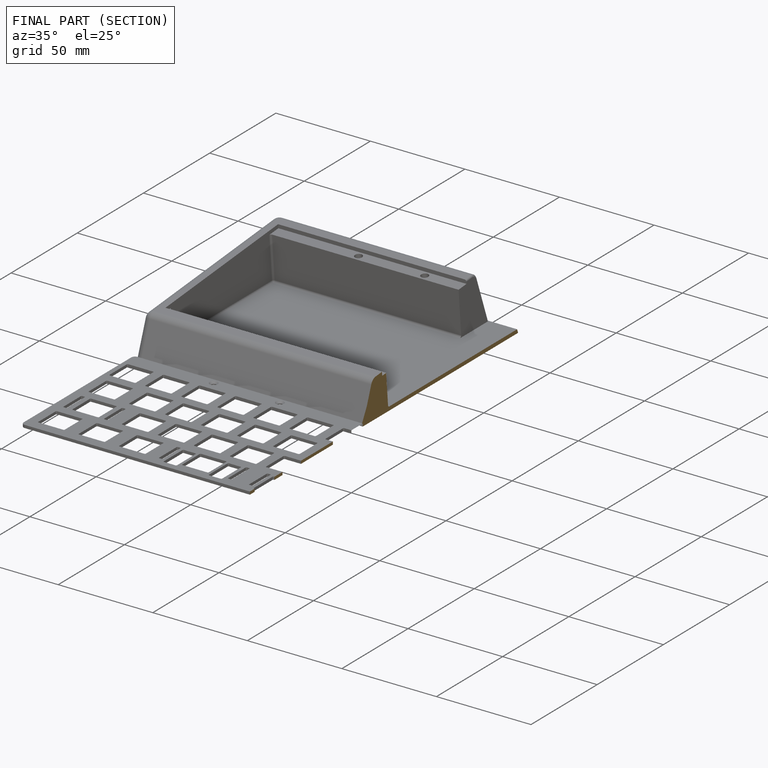
[diagram: finished part — half-section view (interior)]
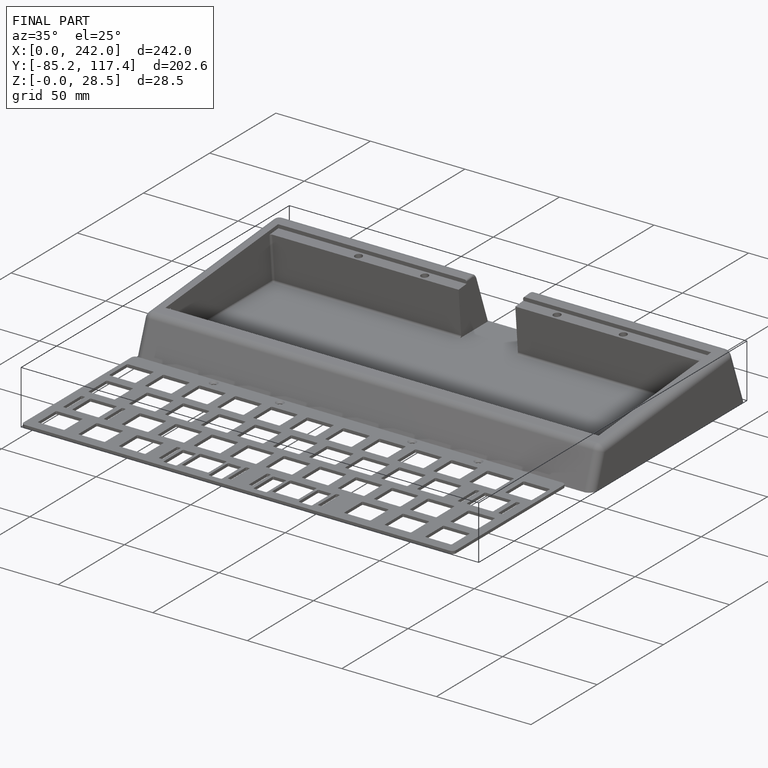
[diagram: finished part — iso view with bounding-box wireframe]
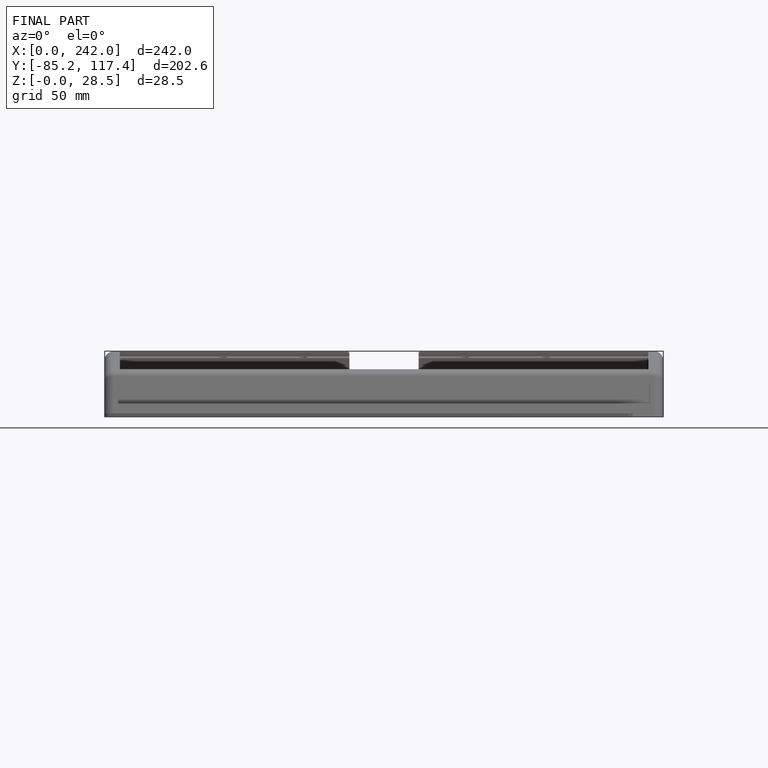
[diagram: finished part — front view with bounding-box wireframe]
